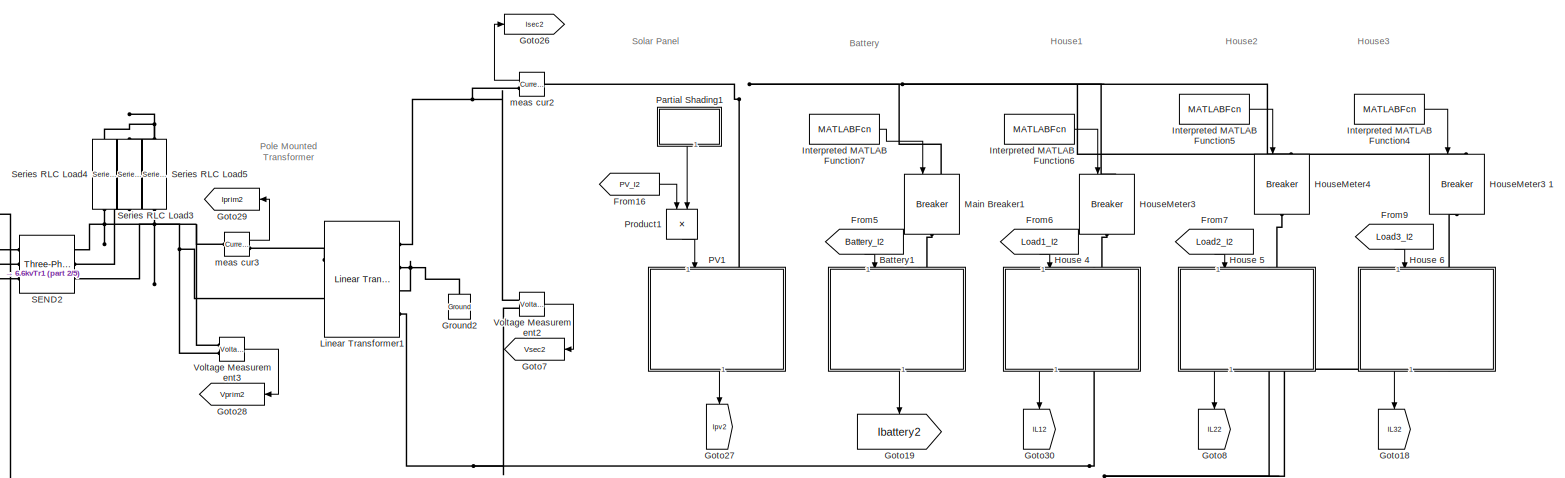
[diagram: root canvas - part 1/5, full width, top band]
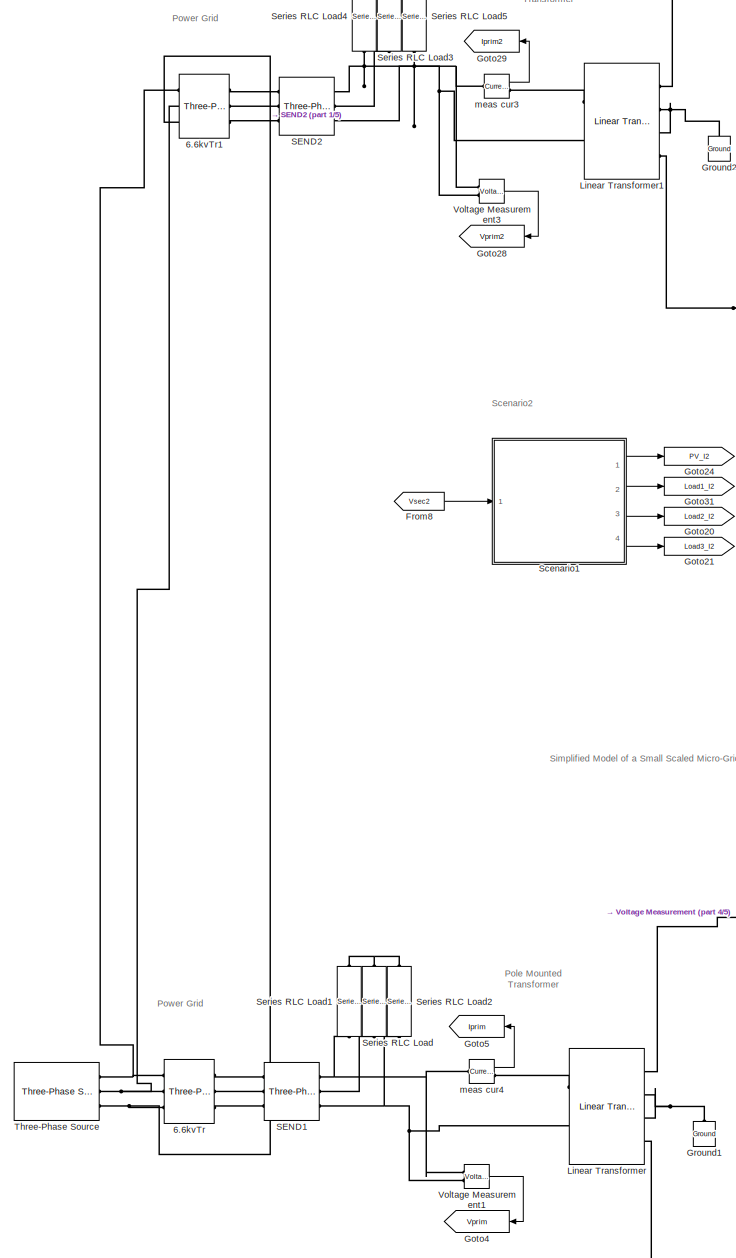
[diagram: root canvas - part 2/5, middle left region]
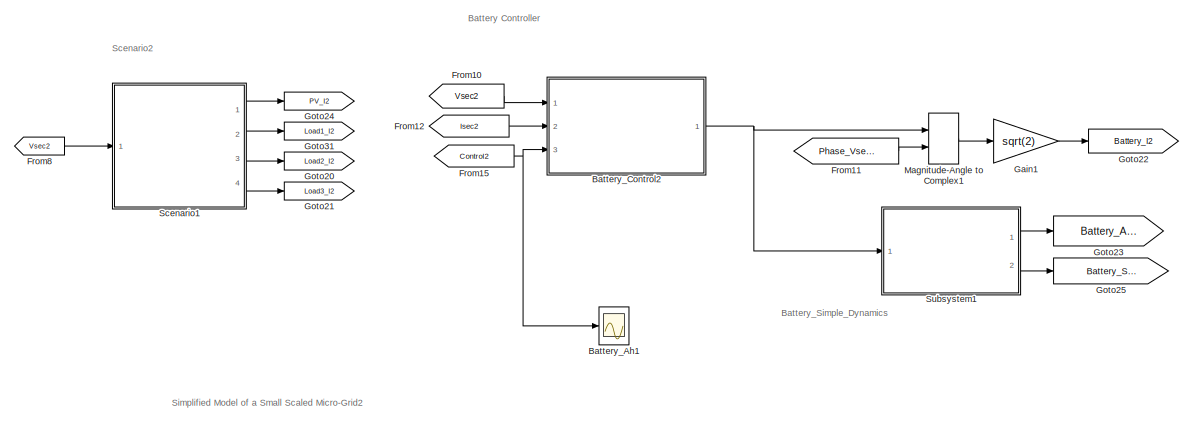
[diagram: root canvas - part 3/5, central region]
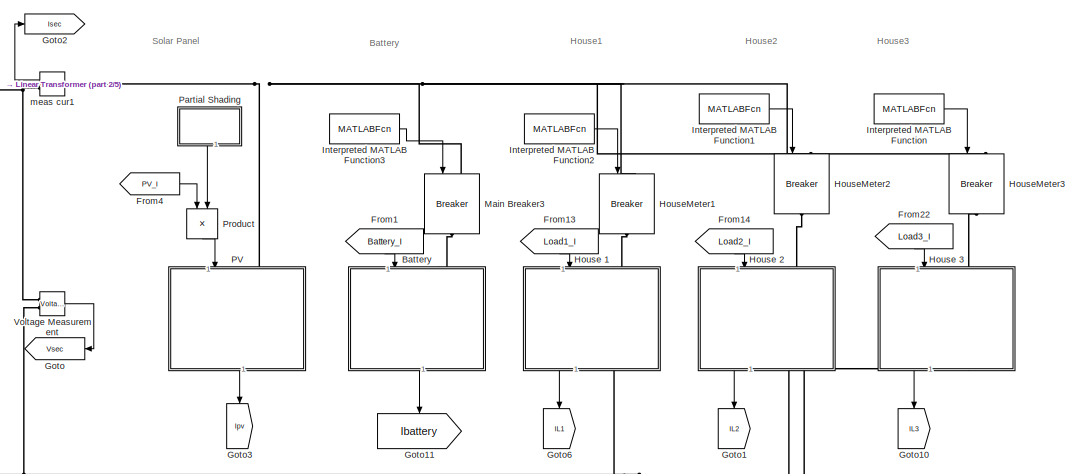
[diagram: root canvas - part 4/5, middle right region]
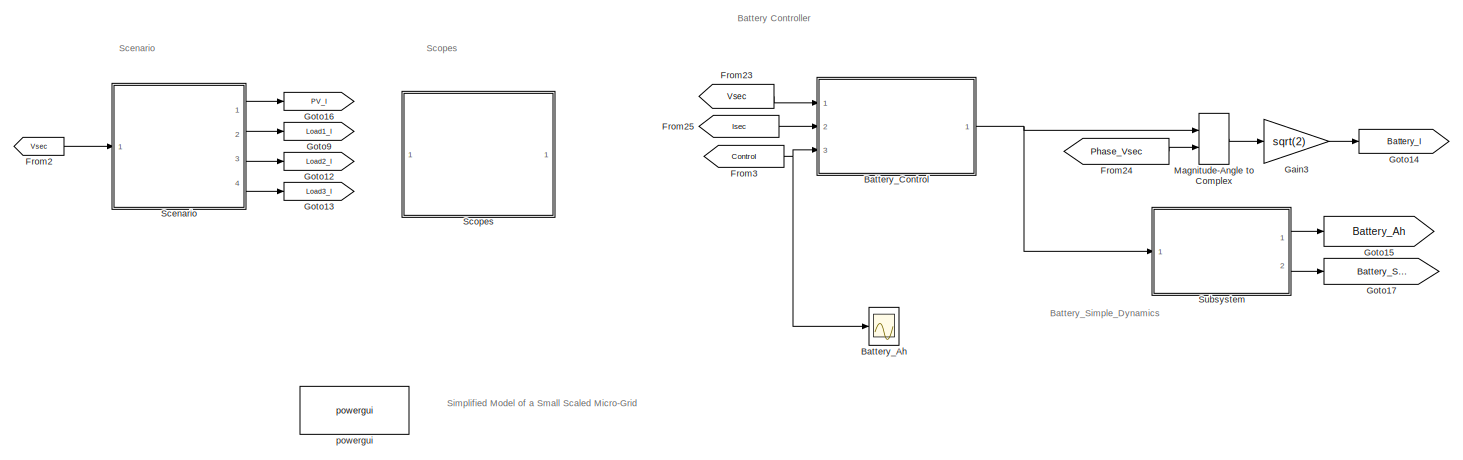
[diagram: root canvas - part 5/5, full width, bottom band]
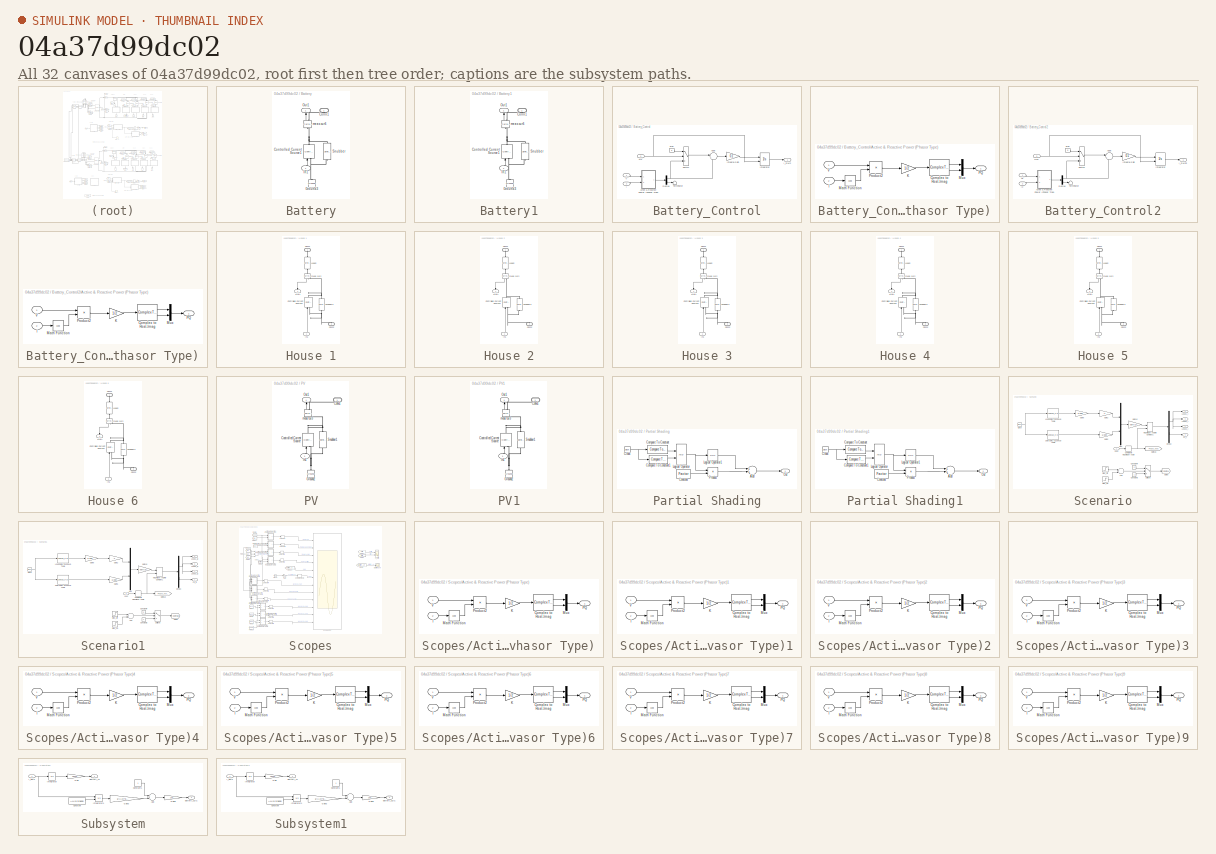
[diagram: thumbnail index - all 32 canvases of the model, root first then tree order]
MODEL slx_04a37d99dc02
KIND model
CONFIG AbsTol = auto
CONFIG EnableMultiTasking = off
CONFIG FixedStep = 1/(1000)
CONFIG MaxStep = 60
CONFIG MinStep = auto
CONFIG PreLoadFcn = load('solar_load_data_24h.mat')\n
CONFIG RelTol = 1e-4
CONFIG SampleTimeConstraint = Unconstrained
CONFIG Solver = ode23tb
CONFIG SolverName = ode23tb
CONFIG StartTime = 0.0
CONFIG StopTime = 24*60*60
BLOCK [Reference] 6.6kvTr  REF=powerlib/Elements/Three-Phase
Transformer
(Two Windings)
  Ports = [0, 0, 0, 0, 0, 3, 3]
  SourceBlock = powerlib/Elements/Three-Phase\nTransformer\n(Two Windings)
  SourceType = Three-Phase Transformer (Two Windings)
BLOCK [Reference] 6.6kvTr1  REF=powerlib/Elements/Three-Phase
Transformer
(Two Windings)
  Ports = [0, 0, 0, 0, 0, 3, 3]
  SourceBlock = powerlib/Elements/Three-Phase\nTransformer\n(Two Windings)
  SourceType = Three-Phase Transformer (Two Windings)
BLOCK [SubSystem] Battery
  Ports = [1, 1, 0, 0, 0, 1]
  RequestExecContextInheritance = off
  Variant = off
BLOCK [PMIOPort] Battery/Conn1
  Port = 1
  Side = Left
BLOCK [Reference] Battery/Controlled Current Source1  REF=powerlib/Electrical
Sources/Controlled Current Source
  Ports = [1, 0, 0, 0, 0, 1, 1]
  SourceBlock = powerlib/Electrical\nSources/Controlled Current Source
  SourceType = Controlled Current Source
BLOCK [Reference] Battery/Ground3  REF=powerlib/Elements/Ground
  Ports = [0, 0, 0, 0, 0, 1]
  SourceBlock = powerlib/Elements/Ground
  SourceType = Ground
BLOCK [Inport] Battery/In1
  IconDisplay = Port number
BLOCK [Outport] Battery/Out1
  IconDisplay = Port number
BLOCK [Reference] Battery/Snubber  REF=powerlib/Elements/Series RLC Branch
  Ports = [0, 0, 0, 0, 0, 1, 1]
  SourceBlock = powerlib/Elements/Series RLC Branch
  SourceType = Series RLC Branch
BLOCK [Reference] Battery/meas cur6  REF=powerlib/Measurements/Current Measurement
  Ports = [0, 1, 0, 0, 0, 1, 1]
  SourceBlock = powerlib/Measurements/Current Measurement
  SourceType = Current Measurement
BLOCK [SubSystem] Battery1
  Ports = [1, 1, 0, 0, 0, 1]
  RequestExecContextInheritance = off
  Variant = off
BLOCK [PMIOPort] Battery1/Conn1
  Port = 1
  Side = Left
BLOCK [Reference] Battery1/Controlled Current Source1  REF=powerlib/Electrical
Sources/Controlled Current Source
  Ports = [1, 0, 0, 0, 0, 1, 1]
  SourceBlock = powerlib/Electrical\nSources/Controlled Current Source
  SourceType = Controlled Current Source
BLOCK [Reference] Battery1/Ground3  REF=powerlib/Elements/Ground
  Ports = [0, 0, 0, 0, 0, 1]
  SourceBlock = powerlib/Elements/Ground
  SourceType = Ground
BLOCK [Inport] Battery1/In1
  IconDisplay = Port number
BLOCK [Outport] Battery1/Out1
  IconDisplay = Port number
BLOCK [Reference] Battery1/Snubber  REF=powerlib/Elements/Series RLC Branch
  Ports = [0, 0, 0, 0, 0, 1, 1]
  SourceBlock = powerlib/Elements/Series RLC Branch
  SourceType = Series RLC Branch
BLOCK [Reference] Battery1/meas cur6  REF=powerlib/Measurements/Current Measurement
  Ports = [0, 1, 0, 0, 0, 1, 1]
  SourceBlock = powerlib/Measurements/Current Measurement
  SourceType = Current Measurement
BLOCK [Scope] Battery_Ah
  NumInputPorts = 1
  Ports = [1]
  ScopeSpecificationString = C++SS(StrPVP('Location','[1549, 770, 2269, 1071]'),StrPVP('Open','off'),StrPVP('ZoomMode','yonly'),MxPVP('AxesTitles',24,'struct(''axes1'',''%<SignalLabel>'')'),MxPVP('ScopeGraphics',28,'struct(''FigureColor'',''[0.5 0.5 0.5]'',''AxesColor'',''[0 0 0]'',''AxesTickColor'',''[1 1 1]'',''LineColors'',''[1 1 0;1 0 1;0 1 1;1 0 0;0 1 0;0 0 1]'',''LineStyles'',''-|-|-|-|-|-'',''LineWidths'',''[0.5 0.5 0....<+340ch>
BLOCK [Scope] Battery_Ah1
  NumInputPorts = 1
  Ports = [1]
  ScopeSpecificationString = C++SS(StrPVP('Location','[1549, 770, 2269, 1071]'),StrPVP('Open','off'),StrPVP('ZoomMode','yonly'),MxPVP('AxesTitles',24,'struct(''axes1'',''%<SignalLabel>'')'),MxPVP('ScopeGraphics',28,'struct(''FigureColor'',''[0.5 0.5 0.5]'',''AxesColor'',''[0 0 0]'',''AxesTickColor'',''[1 1 1]'',''LineColors'',''[1 1 0;1 0 1;0 1 1;1 0 0;0 1 0;0 0 1]'',''LineStyles'',''-|-|-|-|-|-'',''LineWidths'',''[0.5 0.5 0....<+372ch>
BLOCK [SubSystem] Battery_Control
  Ports = [3, 1]
  RequestExecContextInheritance = off
  Variant = off
BLOCK [SubSystem] Battery_Control/Active & Reactive Power (Phasor Type)
  DialogController = POWERSYS.PowerSysDialog
  Ports = [2, 1]
  RequestExecContextInheritance = off
  Variant = off
BLOCK [ComplexToRealImag] Battery_Control/Active & Reactive Power (Phasor Type)/Complex to Real-Imag
  Ports = [1, 2]
BLOCK [Inport] Battery_Control/Active & Reactive Power (Phasor Type)/I
  IconDisplay = Port number
  Port = 2
BLOCK [Gain] Battery_Control/Active & Reactive Power (Phasor Type)/K
  Gain = 1/2
BLOCK [Math] Battery_Control/Active & Reactive Power (Phasor Type)/Math Function
  Operator = conj
  Ports = [1, 1]
BLOCK [Mux] Battery_Control/Active & Reactive Power (Phasor Type)/Mux
  DisplayOption = bar
  Inputs = 2
  Ports = [2, 1]
BLOCK [Outport] Battery_Control/Active & Reactive Power (Phasor Type)/PQ
  IconDisplay = Port number
BLOCK [Product] Battery_Control/Active & Reactive Power (Phasor Type)/Product2
  Ports = [2, 1]
  RndMeth = Floor
BLOCK [Inport] Battery_Control/Active & Reactive Power (Phasor Type)/V
  IconDisplay = Port number
BLOCK [Sum] Battery_Control/Add6
  IconShape = round
  InputSameDT = off
  Inputs = |+-
  OutDataTypeStr = Inherit: Inherit via internal rule
  Ports = [2, 1]
  SaturateOnIntegerOverflow = off
BLOCK [Demux] Battery_Control/Demux
  DisplayOption = bar
  Outputs = 2
  Ports = [1, 2]
BLOCK [Inport] Battery_Control/I
  IconDisplay = Port number
  Port = 2
BLOCK [Outport] Battery_Control/I_RMS
  IconDisplay = Port number
  InitialOutput = 0
  OutputWhenDisabled = reset
BLOCK [Gain] Battery_Control/Integral Gain
  Gain = 0.1
  OutDataTypeStr = Inherit: Inherit via internal rule
  ParamDataTypeStr = Inherit: Inherit via internal rule
  SaturateOnIntegerOverflow = off
BLOCK [Integrator] Battery_Control/Integrator
  ExternalReset = falling
  LimitOutput = on
  LowerSaturationLimit = -50
  Ports = [2, 1]
  UpperSaturationLimit = 50
BLOCK [Inport] Battery_Control/On
  IconDisplay = Port number
  Port = 3
BLOCK [Constant] Battery_Control/Pref
  Value = 0
BLOCK [Switch] Battery_Control/Switch
  InputSameDT = off
  SaturateOnIntegerOverflow = off
  Threshold = 0.5
BLOCK [Terminator] Battery_Control/Terminator
BLOCK [Inport] Battery_Control/V
  IconDisplay = Port number
BLOCK [SubSystem] Battery_Control2
  Ports = [3, 1]
  RequestExecContextInheritance = off
  Variant = off
BLOCK [SubSystem] Battery_Control2/Active & Reactive Power (Phasor Type)
  DialogController = POWERSYS.PowerSysDialog
  Ports = [2, 1]
  RequestExecContextInheritance = off
  Variant = off
BLOCK [ComplexToRealImag] Battery_Control2/Active & Reactive Power (Phasor Type)/Complex to Real-Imag
  Ports = [1, 2]
BLOCK [Inport] Battery_Control2/Active & Reactive Power (Phasor Type)/I
  IconDisplay = Port number
  Port = 2
BLOCK [Gain] Battery_Control2/Active & Reactive Power (Phasor Type)/K
  Gain = 1/2
BLOCK [Math] Battery_Control2/Active & Reactive Power (Phasor Type)/Math Function
  Operator = conj
  Ports = [1, 1]
BLOCK [Mux] Battery_Control2/Active & Reactive Power (Phasor Type)/Mux
  DisplayOption = bar
  Inputs = 2
  Ports = [2, 1]
BLOCK [Outport] Battery_Control2/Active & Reactive Power (Phasor Type)/PQ
  IconDisplay = Port number
BLOCK [Product] Battery_Control2/Active & Reactive Power (Phasor Type)/Product2
  Ports = [2, 1]
  RndMeth = Floor
BLOCK [Inport] Battery_Control2/Active & Reactive Power (Phasor Type)/V
  IconDisplay = Port number
BLOCK [Sum] Battery_Control2/Add6
  IconShape = round
  InputSameDT = off
  Inputs = |+-
  OutDataTypeStr = Inherit: Inherit via internal rule
  Ports = [2, 1]
  SaturateOnIntegerOverflow = off
BLOCK [Demux] Battery_Control2/Demux
  DisplayOption = bar
  Outputs = 2
  Ports = [1, 2]
BLOCK [Inport] Battery_Control2/I2
  IconDisplay = Port number
  Port = 2
BLOCK [Outport] Battery_Control2/I_RMS2
  IconDisplay = Port number
  InitialOutput = 0
  OutputWhenDisabled = reset
BLOCK [Gain] Battery_Control2/Integral Gain
  Gain = 0.1
  OutDataTypeStr = Inherit: Inherit via internal rule
  ParamDataTypeStr = Inherit: Inherit via internal rule
  SaturateOnIntegerOverflow = off
BLOCK [Integrator] Battery_Control2/Integrator
  ExternalReset = falling
  LimitOutput = on
  LowerSaturationLimit = -50
  Ports = [2, 1]
  UpperSaturationLimit = 50
BLOCK [Inport] Battery_Control2/On2
  IconDisplay = Port number
  Port = 3
BLOCK [Constant] Battery_Control2/Pref
  Value = 0
BLOCK [Switch] Battery_Control2/Switch
  InputSameDT = off
  SaturateOnIntegerOverflow = off
  Threshold = 0.5
BLOCK [Terminator] Battery_Control2/Terminator
BLOCK [Inport] Battery_Control2/V2
  IconDisplay = Port number
BLOCK [From] From1
  GotoTag = Battery_I
  TagVisibility = global
BLOCK [From] From10
  GotoTag = Vsec2
  TagVisibility = global
BLOCK [From] From11
  GotoTag = Phase_Vsec2
  TagVisibility = global
BLOCK [From] From12
  GotoTag = Isec2
  TagVisibility = global
BLOCK [From] From13
  GotoTag = Load1_I
  TagVisibility = global
BLOCK [From] From14
  GotoTag = Load2_I
  TagVisibility = global
BLOCK [From] From15
  GotoTag = Control2
  TagVisibility = global
BLOCK [From] From16
  GotoTag = PV_I2
  TagVisibility = global
BLOCK [From] From2
  GotoTag = Vsec
  TagVisibility = global
BLOCK [From] From22
  GotoTag = Load3_I
  TagVisibility = global
BLOCK [From] From23
  GotoTag = Vsec
  TagVisibility = global
BLOCK [From] From24
  GotoTag = Phase_Vsec
  TagVisibility = global
BLOCK [From] From25
  GotoTag = Isec
  TagVisibility = global
BLOCK [From] From3
  GotoTag = Control
  TagVisibility = global
BLOCK [From] From4
  GotoTag = PV_I
  TagVisibility = global
BLOCK [From] From5
  GotoTag = Battery_I2
  TagVisibility = global
BLOCK [From] From6
  GotoTag = Load1_I2
  TagVisibility = global
BLOCK [From] From7
  GotoTag = Load2_I2
  TagVisibility = global
BLOCK [From] From8
  GotoTag = Vsec2
  TagVisibility = global
BLOCK [From] From9
  GotoTag = Load3_I2
  TagVisibility = global
BLOCK [Gain] Gain1
  Gain = sqrt(2)
  OutDataTypeStr = Inherit: Inherit via internal rule
  ParamDataTypeStr = Inherit: Inherit via internal rule
  SaturateOnIntegerOverflow = off
BLOCK [Gain] Gain3
  Gain = sqrt(2)
  OutDataTypeStr = Inherit: Inherit via internal rule
  ParamDataTypeStr = Inherit: Inherit via internal rule
  SaturateOnIntegerOverflow = off
BLOCK [Goto] Goto
  GotoTag = Vsec
  TagVisibility = global
BLOCK [Goto] Goto1
  GotoTag = IL2
  TagVisibility = global
BLOCK [Goto] Goto10
  GotoTag = IL3
  TagVisibility = global
BLOCK [Goto] Goto11
  GotoTag = Ibattery
  TagVisibility = global
BLOCK [Goto] Goto12
  GotoTag = Load2_I
  TagVisibility = global
BLOCK [Goto] Goto13
  GotoTag = Load3_I
  TagVisibility = global
BLOCK [Goto] Goto14
  GotoTag = Battery_I
  TagVisibility = global
BLOCK [Goto] Goto15
  GotoTag = Battery_Ah
  TagVisibility = global
BLOCK [Goto] Goto16
  GotoTag = PV_I
  TagVisibility = global
BLOCK [Goto] Goto17
  GotoTag = Battery_SOC
  TagVisibility = global
BLOCK [Goto] Goto18
  GotoTag = IL32
  TagVisibility = global
BLOCK [Goto] Goto19
  GotoTag = Ibattery2
  TagVisibility = global
BLOCK [Goto] Goto2
  GotoTag = Isec
  TagVisibility = global
BLOCK [Goto] Goto20
  GotoTag = Load2_I2
  TagVisibility = global
BLOCK [Goto] Goto21
  GotoTag = Load3_I2
  TagVisibility = global
BLOCK [Goto] Goto22
  GotoTag = Battery_I2
  TagVisibility = global
BLOCK [Goto] Goto23
  GotoTag = Battery_Ah2
  TagVisibility = global
BLOCK [Goto] Goto24
  GotoTag = PV_I2
  TagVisibility = global
BLOCK [Goto] Goto25
  GotoTag = Battery_SOC2
  TagVisibility = global
BLOCK [Goto] Goto26
  GotoTag = Isec2
  TagVisibility = global
BLOCK [Goto] Goto27
  GotoTag = Ipv2
  TagVisibility = global
BLOCK [Goto] Goto28
  GotoTag = Vprim2
  TagVisibility = global
BLOCK [Goto] Goto29
  Commented = on
  GotoTag = Iprim2
  TagVisibility = global
BLOCK [Goto] Goto3
  GotoTag = Ipv
  TagVisibility = global
BLOCK [Goto] Goto30
  GotoTag = IL12
  TagVisibility = global
BLOCK [Goto] Goto31
  GotoTag = Load1_I2
  TagVisibility = global
BLOCK [Goto] Goto4
  GotoTag = Vprim
  TagVisibility = global
BLOCK [Goto] Goto5
  GotoTag = Iprim
  TagVisibility = global
BLOCK [Goto] Goto6
  GotoTag = IL1
  TagVisibility = global
BLOCK [Goto] Goto7
  GotoTag = Vsec2
  TagVisibility = global
BLOCK [Goto] Goto8
  GotoTag = IL22
  TagVisibility = global
BLOCK [Goto] Goto9
  GotoTag = Load1_I
  TagVisibility = global
BLOCK [Reference] Ground1  REF=powerlib/Elements/Ground
  Ports = [0, 0, 0, 0, 0, 1]
  SourceBlock = powerlib/Elements/Ground
  SourceType = Ground
BLOCK [Reference] Ground2  REF=powerlib/Elements/Ground
  Ports = [0, 0, 0, 0, 0, 1]
  SourceBlock = powerlib/Elements/Ground
  SourceType = Ground
BLOCK [SubSystem] House 1
  Ports = [1, 1, 0, 0, 0, 1, 1]
  RequestExecContextInheritance = off
  Variant = off
BLOCK [PMIOPort] House 1/Conn1
  Port = 1
  Side = Left
BLOCK [PMIOPort] House 1/Conn2
  Port = 2
  Side = Right
BLOCK [Reference] House 1/Controlled Current Source4  REF=powerlib/Electrical
Sources/Controlled Current Source
  Ports = [1, 0, 0, 0, 0, 1, 1]
  SourceBlock = powerlib/Electrical\nSources/Controlled Current Source
  SourceType = Controlled Current Source
BLOCK [Inport] House 1/In1
  IconDisplay = Port number
BLOCK [Reference] House 1/Load2  REF=powerlib/Elements/Series RLC Branch
  Ports = [0, 0, 0, 0, 0, 1, 1]
  SourceBlock = powerlib/Elements/Series RLC Branch
  SourceType = Series RLC Branch
BLOCK [Outport] House 1/Out1
  IconDisplay = Port number
BLOCK [Reference] House 1/Snubber3  REF=powerlib/Elements/Series RLC Branch
  Ports = [0, 0, 0, 0, 0, 1, 1]
  SourceBlock = powerlib/Elements/Series RLC Branch
  SourceType = Series RLC Branch
BLOCK [Reference] House 1/meas cur2  REF=powerlib/Measurements/Current Measurement
  Ports = [0, 1, 0, 0, 0, 1, 1]
  SourceBlock = powerlib/Measurements/Current Measurement
  SourceType = Current Measurement
BLOCK [SubSystem] House 2
  Ports = [1, 1, 0, 0, 0, 1, 1]
  RequestExecContextInheritance = off
  Variant = off
BLOCK [PMIOPort] House 2/Conn1
  Port = 1
  Side = Left
BLOCK [PMIOPort] House 2/Conn2
  Port = 2
  Side = Right
BLOCK [Reference] House 2/Controlled Current Source4  REF=powerlib/Electrical
Sources/Controlled Current Source
  Ports = [1, 0, 0, 0, 0, 1, 1]
  SourceBlock = powerlib/Electrical\nSources/Controlled Current Source
  SourceType = Controlled Current Source
BLOCK [Inport] House 2/In1
  IconDisplay = Port number
BLOCK [Reference] House 2/Load2  REF=powerlib/Elements/Series RLC Branch
  Ports = [0, 0, 0, 0, 0, 1, 1]
  SourceBlock = powerlib/Elements/Series RLC Branch
  SourceType = Series RLC Branch
BLOCK [Outport] House 2/Out1
  IconDisplay = Port number
BLOCK [Reference] House 2/Snubber3  REF=powerlib/Elements/Series RLC Branch
  Ports = [0, 0, 0, 0, 0, 1, 1]
  SourceBlock = powerlib/Elements/Series RLC Branch
  SourceType = Series RLC Branch
BLOCK [Reference] House 2/meas cur2  REF=powerlib/Measurements/Current Measurement
  Ports = [0, 1, 0, 0, 0, 1, 1]
  SourceBlock = powerlib/Measurements/Current Measurement
  SourceType = Current Measurement
BLOCK [SubSystem] House 3
  Ports = [1, 1, 0, 0, 0, 1, 1]
  RequestExecContextInheritance = off
  Variant = off
BLOCK [PMIOPort] House 3/Conn1
  Port = 1
  Side = Left
BLOCK [PMIOPort] House 3/Conn2
  Port = 2
  Side = Right
BLOCK [Reference] House 3/Controlled Current Source4  REF=powerlib/Electrical
Sources/Controlled Current Source
  Ports = [1, 0, 0, 0, 0, 1, 1]
  SourceBlock = powerlib/Electrical\nSources/Controlled Current Source
  SourceType = Controlled Current Source
BLOCK [Inport] House 3/In1
  IconDisplay = Port number
BLOCK [Reference] House 3/Load2  REF=powerlib/Elements/Series RLC Branch
  Ports = [0, 0, 0, 0, 0, 1, 1]
  SourceBlock = powerlib/Elements/Series RLC Branch
  SourceType = Series RLC Branch
BLOCK [Outport] House 3/Out1
  IconDisplay = Port number
BLOCK [Reference] House 3/Snubber3  REF=powerlib/Elements/Series RLC Branch
  Ports = [0, 0, 0, 0, 0, 1, 1]
  SourceBlock = powerlib/Elements/Series RLC Branch
  SourceType = Series RLC Branch
BLOCK [Reference] House 3/meas cur2  REF=powerlib/Measurements/Current Measurement
  Ports = [0, 1, 0, 0, 0, 1, 1]
  SourceBlock = powerlib/Measurements/Current Measurement
  SourceType = Current Measurement
BLOCK [SubSystem] House 4
  Ports = [1, 1, 0, 0, 0, 1, 1]
  RequestExecContextInheritance = off
  Variant = off
BLOCK [PMIOPort] House 4/Conn1
  Port = 1
  Side = Left
BLOCK [PMIOPort] House 4/Conn2
  Port = 2
  Side = Right
BLOCK [Reference] House 4/Controlled Current Source4  REF=powerlib/Electrical
Sources/Controlled Current Source
  Ports = [1, 0, 0, 0, 0, 1, 1]
  SourceBlock = powerlib/Electrical\nSources/Controlled Current Source
  SourceType = Controlled Current Source
BLOCK [Inport] House 4/In1
  IconDisplay = Port number
BLOCK [Reference] House 4/Load2  REF=powerlib/Elements/Series RLC Branch
  Ports = [0, 0, 0, 0, 0, 1, 1]
  SourceBlock = powerlib/Elements/Series RLC Branch
  SourceType = Series RLC Branch
BLOCK [Outport] House 4/Out1
  IconDisplay = Port number
BLOCK [Reference] House 4/Snubber3  REF=powerlib/Elements/Series RLC Branch
  Ports = [0, 0, 0, 0, 0, 1, 1]
  SourceBlock = powerlib/Elements/Series RLC Branch
  SourceType = Series RLC Branch
BLOCK [Reference] House 4/meas cur2  REF=powerlib/Measurements/Current Measurement
  Ports = [0, 1, 0, 0, 0, 1, 1]
  SourceBlock = powerlib/Measurements/Current Measurement
  SourceType = Current Measurement
BLOCK [SubSystem] House 5
  Ports = [1, 1, 0, 0, 0, 1, 1]
  RequestExecContextInheritance = off
  Variant = off
BLOCK [PMIOPort] House 5/Conn1
  Port = 1
  Side = Left
BLOCK [PMIOPort] House 5/Conn2
  Port = 2
  Side = Right
BLOCK [Reference] House 5/Controlled Current Source4  REF=powerlib/Electrical
Sources/Controlled Current Source
  Ports = [1, 0, 0, 0, 0, 1, 1]
  SourceBlock = powerlib/Electrical\nSources/Controlled Current Source
  SourceType = Controlled Current Source
BLOCK [Inport] House 5/In1
  IconDisplay = Port number
BLOCK [Reference] House 5/Load2  REF=powerlib/Elements/Series RLC Branch
  Ports = [0, 0, 0, 0, 0, 1, 1]
  SourceBlock = powerlib/Elements/Series RLC Branch
  SourceType = Series RLC Branch
BLOCK [Outport] House 5/Out1
  IconDisplay = Port number
BLOCK [Reference] House 5/Snubber3  REF=powerlib/Elements/Series RLC Branch
  Ports = [0, 0, 0, 0, 0, 1, 1]
  SourceBlock = powerlib/Elements/Series RLC Branch
  SourceType = Series RLC Branch
BLOCK [Reference] House 5/meas cur2  REF=powerlib/Measurements/Current Measurement
  Ports = [0, 1, 0, 0, 0, 1, 1]
  SourceBlock = powerlib/Measurements/Current Measurement
  SourceType = Current Measurement
BLOCK [SubSystem] House 6
  Ports = [1, 1, 0, 0, 0, 1, 1]
  RequestExecContextInheritance = off
  Variant = off
BLOCK [PMIOPort] House 6/Conn1
  Port = 1
  Side = Left
BLOCK [PMIOPort] House 6/Conn2
  Port = 2
  Side = Right
BLOCK [Reference] House 6/Controlled Current Source4  REF=powerlib/Electrical
Sources/Controlled Current Source
  Ports = [1, 0, 0, 0, 0, 1, 1]
  SourceBlock = powerlib/Electrical\nSources/Controlled Current Source
  SourceType = Controlled Current Source
BLOCK [Inport] House 6/In1
  IconDisplay = Port number
BLOCK [Reference] House 6/Load2  REF=powerlib/Elements/Series RLC Branch
  Ports = [0, 0, 0, 0, 0, 1, 1]
  SourceBlock = powerlib/Elements/Series RLC Branch
  SourceType = Series RLC Branch
BLOCK [Outport] House 6/Out1
  IconDisplay = Port number
BLOCK [Reference] House 6/Snubber3  REF=powerlib/Elements/Series RLC Branch
  Ports = [0, 0, 0, 0, 0, 1, 1]
  SourceBlock = powerlib/Elements/Series RLC Branch
  SourceType = Series RLC Branch
BLOCK [Reference] House 6/meas cur2  REF=powerlib/Measurements/Current Measurement
  Ports = [0, 1, 0, 0, 0, 1, 1]
  SourceBlock = powerlib/Measurements/Current Measurement
  SourceType = Current Measurement
BLOCK [Reference] HouseMeter1  REF=powerlib/Elements/Breaker
  Ports = [1, 0, 0, 0, 0, 1, 1]
  SourceBlock = powerlib/Elements/Breaker
  SourceType = Breaker
BLOCK [Reference] HouseMeter2  REF=powerlib/Elements/Breaker
  Ports = [1, 0, 0, 0, 0, 1, 1]
  SourceBlock = powerlib/Elements/Breaker
  SourceType = Breaker
BLOCK [Reference] HouseMeter3  REF=powerlib/Elements/Breaker
  Ports = [1, 0, 0, 0, 0, 1, 1]
  SourceBlock = powerlib/Elements/Breaker
  SourceType = Breaker
BLOCK [Reference] HouseMeter3   REF=powerlib/Elements/Breaker
  Ports = [1, 0, 0, 0, 0, 1, 1]
  SourceBlock = powerlib/Elements/Breaker
  SourceType = Breaker
BLOCK [Reference] HouseMeter3 1  REF=powerlib/Elements/Breaker
  Ports = [1, 0, 0, 0, 0, 1, 1]
  SourceBlock = powerlib/Elements/Breaker
  SourceType = Breaker
BLOCK [Reference] HouseMeter4  REF=powerlib/Elements/Breaker
  Ports = [1, 0, 0, 0, 0, 1, 1]
  SourceBlock = powerlib/Elements/Breaker
  SourceType = Breaker
BLOCK [MATLABFcn] Interpreted MATLAB Function
  MATLABFcn = h3ControllerFunc
  OutputSignalType = real
  Ports = [1, 1]
BLOCK [MATLABFcn] Interpreted MATLAB Function1
  MATLABFcn = h2ControllerFunc
  OutputSignalType = real
  Ports = [1, 1]
BLOCK [MATLABFcn] Interpreted MATLAB Function2
  MATLABFcn = h1ControllerFunc
  OutputSignalType = real
  Ports = [1, 1]
BLOCK [MATLABFcn] Interpreted MATLAB Function3
  MATLABFcn = BatteryControllerFunc
  OutputSignalType = real
  Ports = [1, 1]
BLOCK [MATLABFcn] Interpreted MATLAB Function4
  MATLABFcn = h3ControllerFunc
  OutputSignalType = real
  Ports = [1, 1]
BLOCK [MATLABFcn] Interpreted MATLAB Function5
  MATLABFcn = h2ControllerFunc
  OutputSignalType = real
  Ports = [1, 1]
BLOCK [MATLABFcn] Interpreted MATLAB Function6
  MATLABFcn = h1ControllerFunc
  OutputSignalType = real
  Ports = [1, 1]
BLOCK [MATLABFcn] Interpreted MATLAB Function7
  MATLABFcn = BatteryControllerFunc
  OutputSignalType = real
  Ports = [1, 1]
BLOCK [Reference] Linear Transformer  REF=powerlib/Elements/Linear Transformer
  Ports = [0, 0, 0, 0, 0, 2, 4]
  SourceBlock = powerlib/Elements/Linear Transformer
  SourceType = Linear Transformer
BLOCK [Reference] Linear Transformer1  REF=powerlib/Elements/Linear Transformer
  Ports = [0, 0, 0, 0, 0, 2, 4]
  SourceBlock = powerlib/Elements/Linear Transformer
  SourceType = Linear Transformer
BLOCK [MagnitudeAngleToComplex] Magnitude-Angle to Complex
  Ports = [2, 1]
BLOCK [MagnitudeAngleToComplex] Magnitude-Angle to Complex1
  Ports = [2, 1]
BLOCK [Reference] Main Breaker1  REF=powerlib/Elements/Breaker
  Ports = [1, 0, 0, 0, 0, 1, 1]
  SourceBlock = powerlib/Elements/Breaker
  SourceType = Breaker
BLOCK [Reference] Main Breaker3  REF=powerlib/Elements/Breaker
  Ports = [1, 0, 0, 0, 0, 1, 1]
  SourceBlock = powerlib/Elements/Breaker
  SourceType = Breaker
BLOCK [SubSystem] PV
  Ports = [1, 1, 0, 0, 0, 1]
  RequestExecContextInheritance = off
  Variant = off
BLOCK [PMIOPort] PV/Conn1
  Port = 1
  Side = Left
BLOCK [Reference] PV/Controlled Current Source  REF=powerlib/Electrical
Sources/Controlled Current Source
  Ports = [1, 0, 0, 0, 0, 1, 1]
  SourceBlock = powerlib/Electrical\nSources/Controlled Current Source
  SourceType = Controlled Current Source
BLOCK [Reference] PV/Ground2  REF=powerlib/Elements/Ground
  Ports = [0, 0, 0, 0, 0, 1]
  SourceBlock = powerlib/Elements/Ground
  SourceType = Ground
BLOCK [Inport] PV/In1
  IconDisplay = Port number
BLOCK [Outport] PV/Out1
  IconDisplay = Port number
BLOCK [Reference] PV/Snubber1  REF=powerlib/Elements/Series RLC Branch
  Ports = [0, 0, 0, 0, 0, 1, 1]
  SourceBlock = powerlib/Elements/Series RLC Branch
  SourceType = Series RLC Branch
BLOCK [Reference] PV/meas cur3  REF=powerlib/Measurements/Current Measurement
  Ports = [0, 1, 0, 0, 0, 1, 1]
  SourceBlock = powerlib/Measurements/Current Measurement
  SourceType = Current Measurement
BLOCK [SubSystem] PV1
  Ports = [1, 1, 0, 0, 0, 1]
  RequestExecContextInheritance = off
  Variant = off
BLOCK [PMIOPort] PV1/Conn1
  Port = 1
  Side = Left
BLOCK [Reference] PV1/Controlled Current Source  REF=powerlib/Electrical
Sources/Controlled Current Source
  Ports = [1, 0, 0, 0, 0, 1, 1]
  SourceBlock = powerlib/Electrical\nSources/Controlled Current Source
  SourceType = Controlled Current Source
BLOCK [Reference] PV1/Ground2  REF=powerlib/Elements/Ground
  Ports = [0, 0, 0, 0, 0, 1]
  SourceBlock = powerlib/Elements/Ground
  SourceType = Ground
BLOCK [Inport] PV1/In1
  IconDisplay = Port number
BLOCK [Outport] PV1/Out1
  IconDisplay = Port number
BLOCK [Reference] PV1/Snubber1  REF=powerlib/Elements/Series RLC Branch
  Ports = [0, 0, 0, 0, 0, 1, 1]
  SourceBlock = powerlib/Elements/Series RLC Branch
  SourceType = Series RLC Branch
BLOCK [Reference] PV1/meas cur3  REF=powerlib/Measurements/Current Measurement
  Ports = [0, 1, 0, 0, 0, 1, 1]
  SourceBlock = powerlib/Measurements/Current Measurement
  SourceType = Current Measurement
BLOCK [SubSystem] Partial Shading
  Ports = [0, 1]
  RequestExecContextInheritance = off
  Variant = off
BLOCK [Sum] Partial Shading/Add
  InputSameDT = off
  OutDataTypeStr = Inherit: Inherit via internal rule
  Ports = [2, 1]
  SaturateOnIntegerOverflow = off
BLOCK [Clock] Partial Shading/Clock
  Decimation = 1
BLOCK [Reference] Partial Shading/Compare To Constant  REF=simulink/Logic and Bit
Operations/Compare
To Constant
  Ports = [1, 1]
  SourceBlock = simulink/Logic and Bit\nOperations/Compare\nTo Constant
  SourceType = Compare To Constant
BLOCK [Reference] Partial Shading/Compare To Constant1  REF=simulink/Logic and Bit
Operations/Compare
To Constant
  Ports = [1, 1]
  SourceBlock = simulink/Logic and Bit\nOperations/Compare\nTo Constant
  SourceType = Compare To Constant
BLOCK [Constant] Partial Shading/Constant
  Value = Factor
BLOCK [Logic] Partial Shading/Logical Operator
  AllPortsSameDT = off
  OutDataTypeStr = float('double')
  Ports = [2, 1]
BLOCK [Logic] Partial Shading/Logical Operator1
  AllPortsSameDT = off
  Operator = NOT
  OutDataTypeStr = float('double')
  Ports = [1, 1]
BLOCK [Outport] Partial Shading/Out
  IconDisplay = Port number
BLOCK [Product] Partial Shading/Product
  InputSameDT = off
  OutDataTypeStr = Inherit: Inherit via internal rule
  Ports = [2, 1]
  RndMeth = Floor
  SaturateOnIntegerOverflow = off
BLOCK [SubSystem] Partial Shading1
  Ports = [0, 1]
  RequestExecContextInheritance = off
  Variant = off
BLOCK [Sum] Partial Shading1/Add
  InputSameDT = off
  OutDataTypeStr = Inherit: Inherit via internal rule
  Ports = [2, 1]
  SaturateOnIntegerOverflow = off
BLOCK [Clock] Partial Shading1/Clock
  Decimation = 1
BLOCK [Reference] Partial Shading1/Compare To Constant  REF=simulink/Logic and Bit
Operations/Compare
To Constant
  Ports = [1, 1]
  SourceBlock = simulink/Logic and Bit\nOperations/Compare\nTo Constant
  SourceType = Compare To Constant
BLOCK [Reference] Partial Shading1/Compare To Constant1  REF=simulink/Logic and Bit
Operations/Compare
To Constant
  Ports = [1, 1]
  SourceBlock = simulink/Logic and Bit\nOperations/Compare\nTo Constant
  SourceType = Compare To Constant
BLOCK [Constant] Partial Shading1/Constant
  Value = Factor
BLOCK [Logic] Partial Shading1/Logical Operator
  AllPortsSameDT = off
  OutDataTypeStr = float('double')
  Ports = [2, 1]
BLOCK [Logic] Partial Shading1/Logical Operator1
  AllPortsSameDT = off
  Operator = NOT
  OutDataTypeStr = float('double')
  Ports = [1, 1]
BLOCK [Outport] Partial Shading1/Out
  IconDisplay = Port number
BLOCK [Product] Partial Shading1/Product
  InputSameDT = off
  OutDataTypeStr = Inherit: Inherit via internal rule
  Ports = [2, 1]
  RndMeth = Floor
  SaturateOnIntegerOverflow = off
BLOCK [Product] Product
  InputSameDT = off
  OutDataTypeStr = Inherit: Inherit via internal rule
  Ports = [2, 1]
  RndMeth = Floor
  SaturateOnIntegerOverflow = off
BLOCK [Product] Product1
  InputSameDT = off
  OutDataTypeStr = Inherit: Inherit via internal rule
  Ports = [2, 1]
  RndMeth = Floor
  SaturateOnIntegerOverflow = off
BLOCK [Reference] SEND1  REF=powerlib/Elements/Three-Phase
PI Section Line
  AttributesFormatString = \n
  Ports = [0, 0, 0, 0, 0, 3, 3]
  SourceBlock = powerlib/Elements/Three-Phase\nPI Section Line
  SourceType = Three-Phase PI Section Line
BLOCK [Reference] SEND2  REF=powerlib/Elements/Three-Phase
PI Section Line
  AttributesFormatString = \n
  Ports = [0, 0, 0, 0, 0, 3, 3]
  SourceBlock = powerlib/Elements/Three-Phase\nPI Section Line
  SourceType = Three-Phase PI Section Line
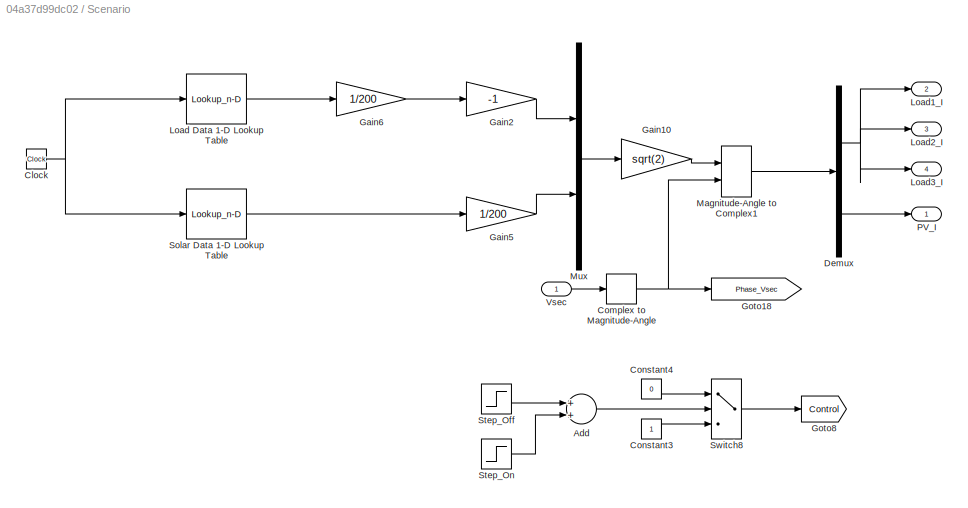
BLOCK [SubSystem] Scenario
  Ports = [1, 4]
  RequestExecContextInheritance = off
  Variant = off
BLOCK [Sum] Scenario/Add
  InputSameDT = off
  OutDataTypeStr = Inherit: Inherit via internal rule
  Ports = [2, 1]
  SaturateOnIntegerOverflow = off
BLOCK [Clock] Scenario/Clock
  Decimation = 1
BLOCK [ComplexToMagnitudeAngle] Scenario/Complex to Magnitude-Angle
  Output = Angle
  Ports = [1, 1]
BLOCK [Constant] Scenario/Constant3
BLOCK [Constant] Scenario/Constant4
  Value = 0
BLOCK [Demux] Scenario/Demux
  DisplayOption = bar
  Outputs = 2
  Ports = [1, 2]
BLOCK [Gain] Scenario/Gain10
  Gain = sqrt(2)
  OutDataTypeStr = Inherit: Inherit via internal rule
  ParamDataTypeStr = Inherit: Inherit via internal rule
  SaturateOnIntegerOverflow = off
BLOCK [Gain] Scenario/Gain2
  Gain = -1
  OutDataTypeStr = Inherit: Inherit via internal rule
  ParamDataTypeStr = Inherit: Inherit via internal rule
  SaturateOnIntegerOverflow = off
BLOCK [Gain] Scenario/Gain5
  Gain = 1/200
  OutDataTypeStr = Inherit: Inherit via internal rule
  ParamDataTypeStr = Inherit: Inherit via internal rule
  SaturateOnIntegerOverflow = off
BLOCK [Gain] Scenario/Gain6
  Gain = 1/200
  OutDataTypeStr = Inherit: Inherit via internal rule
  ParamDataTypeStr = Inherit: Inherit via internal rule
  SaturateOnIntegerOverflow = off
BLOCK [Goto] Scenario/Goto18
  GotoTag = Phase_Vsec
  TagVisibility = global
BLOCK [Goto] Scenario/Goto8
  GotoTag = Control
  TagVisibility = global
BLOCK [Lookup_n-D] Scenario/Load Data 1-D Lookup Table
  BreakpointsForDimension1 = HPT_1min
  InternalRulePriority = Speed
  NumberOfTableDimensions = 1
  Ports = [1, 1]
  RndMeth = Simplest
  Table = HPD_1min
BLOCK [Outport] Scenario/Load1_I
  IconDisplay = Port number
  Port = 2
BLOCK [Outport] Scenario/Load2_I
  IconDisplay = Port number
  Port = 3
BLOCK [Outport] Scenario/Load3_I
  IconDisplay = Port number
  Port = 4
BLOCK [MagnitudeAngleToComplex] Scenario/Magnitude-Angle to Complex1
  Ports = [2, 1]
BLOCK [Mux] Scenario/Mux
  DisplayOption = bar
  Inputs = 2
  Ports = [2, 1]
BLOCK [Outport] Scenario/PV_I
  IconDisplay = Port number
BLOCK [Lookup_n-D] Scenario/Solar Data 1-D Lookup Table
  BreakpointsForDimension1 = SPT_1min
  InternalRulePriority = Speed
  NumberOfTableDimensions = 1
  Ports = [1, 1]
  RndMeth = Simplest
  Table = SPD_1min
BLOCK [Step] Scenario/Step_Off
  SampleTime = 0
  Time = 12*60*60
BLOCK [Step] Scenario/Step_On
  After = -1
  SampleTime = 0
  Time = 18*60*60
BLOCK [Switch] Scenario/Switch8
  InputSameDT = off
  SaturateOnIntegerOverflow = off
  Threshold = 1
BLOCK [Inport] Scenario/Vsec
  IconDisplay = Port number
BLOCK [SubSystem] Scenario1
  Ports = [1, 4]
  RequestExecContextInheritance = off
  Variant = off
BLOCK [Sum] Scenario1/Add
  InputSameDT = off
  OutDataTypeStr = Inherit: Inherit via internal rule
  Ports = [2, 1]
  SaturateOnIntegerOverflow = off
BLOCK [Clock] Scenario1/Clock
  Decimation = 1
BLOCK [ComplexToMagnitudeAngle] Scenario1/Complex to Magnitude-Angle
  Output = Angle
  Ports = [1, 1]
BLOCK [Constant] Scenario1/Constant3
BLOCK [Constant] Scenario1/Constant4
  Value = 0
BLOCK [Demux] Scenario1/Demux
  DisplayOption = bar
  Outputs = 2
  Ports = [1, 2]
BLOCK [Gain] Scenario1/Gain10
  Gain = sqrt(2)
  OutDataTypeStr = Inherit: Inherit via internal rule
  ParamDataTypeStr = Inherit: Inherit via internal rule
  SaturateOnIntegerOverflow = off
BLOCK [Gain] Scenario1/Gain2
  Gain = -1
  OutDataTypeStr = Inherit: Inherit via internal rule
  ParamDataTypeStr = Inherit: Inherit via internal rule
  SaturateOnIntegerOverflow = off
BLOCK [Gain] Scenario1/Gain5
  Gain = 1/200
  OutDataTypeStr = Inherit: Inherit via internal rule
  ParamDataTypeStr = Inherit: Inherit via internal rule
  SaturateOnIntegerOverflow = off
BLOCK [Gain] Scenario1/Gain6
  Gain = 1/200
  OutDataTypeStr = Inherit: Inherit via internal rule
  ParamDataTypeStr = Inherit: Inherit via internal rule
  SaturateOnIntegerOverflow = off
BLOCK [Goto] Scenario1/Goto18
  GotoTag = Phase_Vsec2
  TagVisibility = global
BLOCK [Goto] Scenario1/Goto8
  GotoTag = Control2
  TagVisibility = global
BLOCK [Lookup_n-D] Scenario1/Load Data 1-D Lookup Table
  BreakpointsForDimension1 = HPT_1min
  InternalRulePriority = Speed
  NumberOfTableDimensions = 1
  Ports = [1, 1]
  RndMeth = Simplest
  Table = HPD_1min
BLOCK [Outport] Scenario1/Load1_I2
  IconDisplay = Port number
  Port = 2
BLOCK [Outport] Scenario1/Load2_I2
  IconDisplay = Port number
  Port = 3
BLOCK [Outport] Scenario1/Load3_I2
  IconDisplay = Port number
  Port = 4
BLOCK [MagnitudeAngleToComplex] Scenario1/Magnitude-Angle to Complex1
  Ports = [2, 1]
BLOCK [Mux] Scenario1/Mux
  DisplayOption = bar
  Inputs = 2
  Ports = [2, 1]
BLOCK [Outport] Scenario1/PV_I2
  IconDisplay = Port number
BLOCK [Lookup_n-D] Scenario1/Solar Data 1-D Lookup Table
  BreakpointsForDimension1 = SPT_1min
  InternalRulePriority = Speed
  NumberOfTableDimensions = 1
  Ports = [1, 1]
  RndMeth = Simplest
  Table = SPD_1min
BLOCK [Step] Scenario1/Step_Off
  SampleTime = 0
  Time = 12*60*60
BLOCK [Step] Scenario1/Step_On
  After = -1
  SampleTime = 0
  Time = 18*60*60
BLOCK [Switch] Scenario1/Switch8
  InputSameDT = off
  SaturateOnIntegerOverflow = off
  Threshold = 1
BLOCK [Inport] Scenario1/Vsec
  IconDisplay = Port number
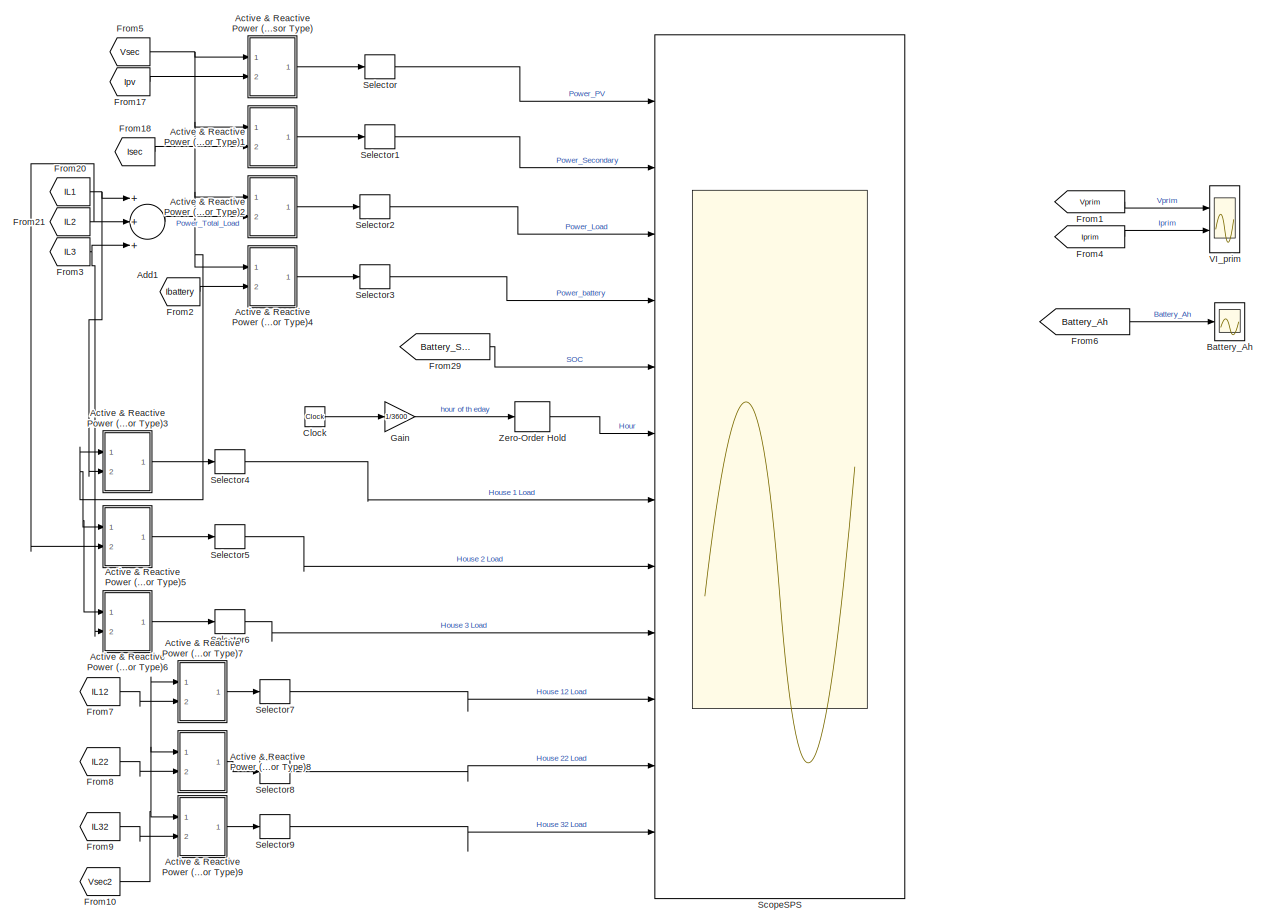
[diagram: Scopes - part 1/1, most of the canvas]
BLOCK [SubSystem] Scopes
  Ports = []
  RequestExecContextInheritance = off
  Variant = off
BLOCK [SubSystem] Scopes/Active & Reactive Power (Phasor Type)
  DialogController = POWERSYS.PowerSysDialog
  Ports = [2, 1]
  RequestExecContextInheritance = off
  Variant = off
BLOCK [ComplexToRealImag] Scopes/Active & Reactive Power (Phasor Type)/Complex to Real-Imag
  Ports = [1, 2]
BLOCK [Inport] Scopes/Active & Reactive Power (Phasor Type)/I
  IconDisplay = Port number
  Port = 2
BLOCK [Gain] Scopes/Active & Reactive Power (Phasor Type)/K
  Gain = 1/2
BLOCK [Math] Scopes/Active & Reactive Power (Phasor Type)/Math Function
  Operator = conj
  Ports = [1, 1]
BLOCK [Mux] Scopes/Active & Reactive Power (Phasor Type)/Mux
  DisplayOption = bar
  Inputs = 2
  Ports = [2, 1]
BLOCK [Outport] Scopes/Active & Reactive Power (Phasor Type)/PQ
  IconDisplay = Port number
BLOCK [Product] Scopes/Active & Reactive Power (Phasor Type)/Product2
  Ports = [2, 1]
  RndMeth = Floor
BLOCK [Inport] Scopes/Active & Reactive Power (Phasor Type)/V
  IconDisplay = Port number
BLOCK [SubSystem] Scopes/Active & Reactive Power (Phasor Type)1
  DialogController = POWERSYS.PowerSysDialog
  Ports = [2, 1]
  RequestExecContextInheritance = off
  Variant = off
BLOCK [ComplexToRealImag] Scopes/Active & Reactive Power (Phasor Type)1/Complex to Real-Imag
  Ports = [1, 2]
BLOCK [Inport] Scopes/Active & Reactive Power (Phasor Type)1/I
  IconDisplay = Port number
  Port = 2
BLOCK [Gain] Scopes/Active & Reactive Power (Phasor Type)1/K
  Gain = 1/2
BLOCK [Math] Scopes/Active & Reactive Power (Phasor Type)1/Math Function
  Operator = conj
  Ports = [1, 1]
BLOCK [Mux] Scopes/Active & Reactive Power (Phasor Type)1/Mux
  DisplayOption = bar
  Inputs = 2
  Ports = [2, 1]
BLOCK [Outport] Scopes/Active & Reactive Power (Phasor Type)1/PQ
  IconDisplay = Port number
BLOCK [Product] Scopes/Active & Reactive Power (Phasor Type)1/Product2
  Ports = [2, 1]
  RndMeth = Floor
BLOCK [Inport] Scopes/Active & Reactive Power (Phasor Type)1/V
  IconDisplay = Port number
BLOCK [SubSystem] Scopes/Active & Reactive Power (Phasor Type)2
  DialogController = POWERSYS.PowerSysDialog
  Ports = [2, 1]
  RequestExecContextInheritance = off
  Variant = off
BLOCK [ComplexToRealImag] Scopes/Active & Reactive Power (Phasor Type)2/Complex to Real-Imag
  Ports = [1, 2]
BLOCK [Inport] Scopes/Active & Reactive Power (Phasor Type)2/I
  IconDisplay = Port number
  Port = 2
BLOCK [Gain] Scopes/Active & Reactive Power (Phasor Type)2/K
  Gain = 1/2
BLOCK [Math] Scopes/Active & Reactive Power (Phasor Type)2/Math Function
  Operator = conj
  Ports = [1, 1]
BLOCK [Mux] Scopes/Active & Reactive Power (Phasor Type)2/Mux
  DisplayOption = bar
  Inputs = 2
  Ports = [2, 1]
BLOCK [Outport] Scopes/Active & Reactive Power (Phasor Type)2/PQ
  IconDisplay = Port number
BLOCK [Product] Scopes/Active & Reactive Power (Phasor Type)2/Product2
  Ports = [2, 1]
  RndMeth = Floor
BLOCK [Inport] Scopes/Active & Reactive Power (Phasor Type)2/V
  IconDisplay = Port number
BLOCK [SubSystem] Scopes/Active & Reactive Power (Phasor Type)3
  DialogController = POWERSYS.PowerSysDialog
  Ports = [2, 1]
  RequestExecContextInheritance = off
  Variant = off
BLOCK [ComplexToRealImag] Scopes/Active & Reactive Power (Phasor Type)3/Complex to Real-Imag
  Ports = [1, 2]
BLOCK [Inport] Scopes/Active & Reactive Power (Phasor Type)3/I
  IconDisplay = Port number
  Port = 2
BLOCK [Gain] Scopes/Active & Reactive Power (Phasor Type)3/K
  Gain = 1/2
BLOCK [Math] Scopes/Active & Reactive Power (Phasor Type)3/Math Function
  Operator = conj
  Ports = [1, 1]
BLOCK [Mux] Scopes/Active & Reactive Power (Phasor Type)3/Mux
  DisplayOption = bar
  Inputs = 2
  Ports = [2, 1]
BLOCK [Outport] Scopes/Active & Reactive Power (Phasor Type)3/PQ
  IconDisplay = Port number
BLOCK [Product] Scopes/Active & Reactive Power (Phasor Type)3/Product2
  Ports = [2, 1]
  RndMeth = Floor
BLOCK [Inport] Scopes/Active & Reactive Power (Phasor Type)3/V
  IconDisplay = Port number
BLOCK [SubSystem] Scopes/Active & Reactive Power (Phasor Type)4
  DialogController = POWERSYS.PowerSysDialog
  Ports = [2, 1]
  RequestExecContextInheritance = off
  Variant = off
BLOCK [ComplexToRealImag] Scopes/Active & Reactive Power (Phasor Type)4/Complex to Real-Imag
  Ports = [1, 2]
BLOCK [Inport] Scopes/Active & Reactive Power (Phasor Type)4/I
  IconDisplay = Port number
  Port = 2
BLOCK [Gain] Scopes/Active & Reactive Power (Phasor Type)4/K
  Gain = 1/2
BLOCK [Math] Scopes/Active & Reactive Power (Phasor Type)4/Math Function
  Operator = conj
  Ports = [1, 1]
BLOCK [Mux] Scopes/Active & Reactive Power (Phasor Type)4/Mux
  DisplayOption = bar
  Inputs = 2
  Ports = [2, 1]
BLOCK [Outport] Scopes/Active & Reactive Power (Phasor Type)4/PQ
  IconDisplay = Port number
BLOCK [Product] Scopes/Active & Reactive Power (Phasor Type)4/Product2
  Ports = [2, 1]
  RndMeth = Floor
BLOCK [Inport] Scopes/Active & Reactive Power (Phasor Type)4/V
  IconDisplay = Port number
BLOCK [SubSystem] Scopes/Active & Reactive Power (Phasor Type)5
  DialogController = POWERSYS.PowerSysDialog
  Ports = [2, 1]
  RequestExecContextInheritance = off
  Variant = off
BLOCK [ComplexToRealImag] Scopes/Active & Reactive Power (Phasor Type)5/Complex to Real-Imag
  Ports = [1, 2]
BLOCK [Inport] Scopes/Active & Reactive Power (Phasor Type)5/I
  IconDisplay = Port number
  Port = 2
BLOCK [Gain] Scopes/Active & Reactive Power (Phasor Type)5/K
  Gain = 1/2
BLOCK [Math] Scopes/Active & Reactive Power (Phasor Type)5/Math Function
  Operator = conj
  Ports = [1, 1]
BLOCK [Mux] Scopes/Active & Reactive Power (Phasor Type)5/Mux
  DisplayOption = bar
  Inputs = 2
  Ports = [2, 1]
BLOCK [Outport] Scopes/Active & Reactive Power (Phasor Type)5/PQ
  IconDisplay = Port number
BLOCK [Product] Scopes/Active & Reactive Power (Phasor Type)5/Product2
  Ports = [2, 1]
  RndMeth = Floor
BLOCK [Inport] Scopes/Active & Reactive Power (Phasor Type)5/V
  IconDisplay = Port number
BLOCK [SubSystem] Scopes/Active & Reactive Power (Phasor Type)6
  DialogController = POWERSYS.PowerSysDialog
  Ports = [2, 1]
  RequestExecContextInheritance = off
  Variant = off
BLOCK [ComplexToRealImag] Scopes/Active & Reactive Power (Phasor Type)6/Complex to Real-Imag
  Ports = [1, 2]
BLOCK [Inport] Scopes/Active & Reactive Power (Phasor Type)6/I
  IconDisplay = Port number
  Port = 2
BLOCK [Gain] Scopes/Active & Reactive Power (Phasor Type)6/K
  Gain = 1/2
BLOCK [Math] Scopes/Active & Reactive Power (Phasor Type)6/Math Function
  Operator = conj
  Ports = [1, 1]
BLOCK [Mux] Scopes/Active & Reactive Power (Phasor Type)6/Mux
  DisplayOption = bar
  Inputs = 2
  Ports = [2, 1]
BLOCK [Outport] Scopes/Active & Reactive Power (Phasor Type)6/PQ
  IconDisplay = Port number
BLOCK [Product] Scopes/Active & Reactive Power (Phasor Type)6/Product2
  Ports = [2, 1]
  RndMeth = Floor
BLOCK [Inport] Scopes/Active & Reactive Power (Phasor Type)6/V
  IconDisplay = Port number
BLOCK [SubSystem] Scopes/Active & Reactive Power (Phasor Type)7
  DialogController = POWERSYS.PowerSysDialog
  Ports = [2, 1]
  RequestExecContextInheritance = off
  Variant = off
BLOCK [ComplexToRealImag] Scopes/Active & Reactive Power (Phasor Type)7/Complex to Real-Imag
  Ports = [1, 2]
BLOCK [Inport] Scopes/Active & Reactive Power (Phasor Type)7/I
  IconDisplay = Port number
  Port = 2
BLOCK [Gain] Scopes/Active & Reactive Power (Phasor Type)7/K
  Gain = 1/2
BLOCK [Math] Scopes/Active & Reactive Power (Phasor Type)7/Math Function
  Operator = conj
  Ports = [1, 1]
BLOCK [Mux] Scopes/Active & Reactive Power (Phasor Type)7/Mux
  DisplayOption = bar
  Inputs = 2
  Ports = [2, 1]
BLOCK [Outport] Scopes/Active & Reactive Power (Phasor Type)7/PQ
  IconDisplay = Port number
BLOCK [Product] Scopes/Active & Reactive Power (Phasor Type)7/Product2
  Ports = [2, 1]
  RndMeth = Floor
BLOCK [Inport] Scopes/Active & Reactive Power (Phasor Type)7/V
  IconDisplay = Port number
BLOCK [SubSystem] Scopes/Active & Reactive Power (Phasor Type)8
  DialogController = POWERSYS.PowerSysDialog
  Ports = [2, 1]
  RequestExecContextInheritance = off
  Variant = off
BLOCK [ComplexToRealImag] Scopes/Active & Reactive Power (Phasor Type)8/Complex to Real-Imag
  Ports = [1, 2]
BLOCK [Inport] Scopes/Active & Reactive Power (Phasor Type)8/I
  IconDisplay = Port number
  Port = 2
BLOCK [Gain] Scopes/Active & Reactive Power (Phasor Type)8/K
  Gain = 1/2
BLOCK [Math] Scopes/Active & Reactive Power (Phasor Type)8/Math Function
  Operator = conj
  Ports = [1, 1]
BLOCK [Mux] Scopes/Active & Reactive Power (Phasor Type)8/Mux
  DisplayOption = bar
  Inputs = 2
  Ports = [2, 1]
BLOCK [Outport] Scopes/Active & Reactive Power (Phasor Type)8/PQ
  IconDisplay = Port number
BLOCK [Product] Scopes/Active & Reactive Power (Phasor Type)8/Product2
  Ports = [2, 1]
  RndMeth = Floor
BLOCK [Inport] Scopes/Active & Reactive Power (Phasor Type)8/V
  IconDisplay = Port number
BLOCK [SubSystem] Scopes/Active & Reactive Power (Phasor Type)9
  DialogController = POWERSYS.PowerSysDialog
  Ports = [2, 1]
  RequestExecContextInheritance = off
  Variant = off
BLOCK [ComplexToRealImag] Scopes/Active & Reactive Power (Phasor Type)9/Complex to Real-Imag
  Ports = [1, 2]
BLOCK [Inport] Scopes/Active & Reactive Power (Phasor Type)9/I
  IconDisplay = Port number
  Port = 2
BLOCK [Gain] Scopes/Active & Reactive Power (Phasor Type)9/K
  Gain = 1/2
BLOCK [Math] Scopes/Active & Reactive Power (Phasor Type)9/Math Function
  Operator = conj
  Ports = [1, 1]
BLOCK [Mux] Scopes/Active & Reactive Power (Phasor Type)9/Mux
  DisplayOption = bar
  Inputs = 2
  Ports = [2, 1]
BLOCK [Outport] Scopes/Active & Reactive Power (Phasor Type)9/PQ
  IconDisplay = Port number
BLOCK [Product] Scopes/Active & Reactive Power (Phasor Type)9/Product2
  Ports = [2, 1]
  RndMeth = Floor
BLOCK [Inport] Scopes/Active & Reactive Power (Phasor Type)9/V
  IconDisplay = Port number
BLOCK [Sum] Scopes/Add1
  InputSameDT = off
  Inputs = +++
  OutDataTypeStr = Inherit: Inherit via internal rule
  Ports = [3, 1]
  SaturateOnIntegerOverflow = off
BLOCK [Scope] Scopes/Battery_Ah
  NumInputPorts = 1
  Ports = [1]
  ScopeSpecificationString = C++SS(StrPVP('Location','[535, 288, 1255, 995]'),StrPVP('Open','off'),StrPVP('ZoomMode','yonly'),MxPVP('AxesTitles',24,'struct(''axes1'',''%<SignalLabel>'')'),MxPVP('ScopeGraphics',28,'struct(''FigureColor'',''[0.5 0.5 0.5]'',''AxesColor'',''[0 0 0]'',''AxesTickColor'',''[1 1 1]'',''LineColors'',''[1 1 0;1 0 1;0 1 1;1 0 0;0 1 0;0 0 1]'',''LineStyles'',''-|-|-|-|-|-'',''LineWidths'',''[0.5 0.5 0.5 ...<+341ch>
BLOCK [Clock] Scopes/Clock
  Decimation = 1
BLOCK [From] Scopes/From1
  GotoTag = Vprim
  TagVisibility = global
BLOCK [From] Scopes/From10
  GotoTag = Vsec2
  TagVisibility = global
BLOCK [From] Scopes/From17
  GotoTag = Ipv
  TagVisibility = global
BLOCK [From] Scopes/From18
  GotoTag = Isec
  TagVisibility = global
BLOCK [From] Scopes/From2
  GotoTag = Ibattery
  TagVisibility = global
BLOCK [From] Scopes/From20
  GotoTag = IL1
  TagVisibility = global
BLOCK [From] Scopes/From21
  GotoTag = IL2
  TagVisibility = global
BLOCK [From] Scopes/From29
  GotoTag = Battery_SOC
  TagVisibility = global
BLOCK [From] Scopes/From3
  GotoTag = IL3
  TagVisibility = global
BLOCK [From] Scopes/From4
  GotoTag = Iprim
  TagVisibility = global
BLOCK [From] Scopes/From5
  GotoTag = Vsec
  TagVisibility = global
BLOCK [From] Scopes/From6
  GotoTag = Battery_Ah
  TagVisibility = global
BLOCK [From] Scopes/From7
  GotoTag = IL12
  TagVisibility = global
BLOCK [From] Scopes/From8
  GotoTag = IL22
  TagVisibility = global
BLOCK [From] Scopes/From9
  GotoTag = IL32
  TagVisibility = global
BLOCK [Gain] Scopes/Gain
  Gain = 1/3600
  OutDataTypeStr = Inherit: Inherit via internal rule
  ParamDataTypeStr = Inherit: Inherit via internal rule
  SaturateOnIntegerOverflow = off
BLOCK [Scope] Scopes/ScopeSPS
  NumInputPorts = 12
  Ports = [12]
  ScopeSpecificationString = Simulink.scopes.TimeScopeBlockCfg('CurrentConfiguration', extmgr.ConfigurationSet(extmgr.Configuration('Core','General UI',true),extmgr.Configuration('Core','Source UI',true),extmgr.Configuration('Sources','WiredSimulink',true,'DataLogging',true,'DataLoggingVariableName','ScopeSPS','DataLoggingSaveFormat','StructureWithTime','DataLoggingDecimation','1','DataLoggingDecimateData',true),extmgr.Config...<+12049ch>
BLOCK [Selector] Scopes/Selector
  IndexOptions = Index vector (dialog)
  Indices = 1
  InputPortWidth = 2
  OutputSizes = 1
  Ports = [1, 1]
BLOCK [Selector] Scopes/Selector1
  IndexOptions = Index vector (dialog)
  Indices = 1
  InputPortWidth = 2
  OutputSizes = 1
  Ports = [1, 1]
BLOCK [Selector] Scopes/Selector2
  IndexOptions = Index vector (dialog)
  Indices = 1
  InputPortWidth = 2
  OutputSizes = 1
  Ports = [1, 1]
BLOCK [Selector] Scopes/Selector3
  IndexOptions = Index vector (dialog)
  Indices = 1
  InputPortWidth = 2
  OutputSizes = 1
  Ports = [1, 1]
BLOCK [Selector] Scopes/Selector4
  IndexOptions = Index vector (dialog)
  Indices = 1
  InputPortWidth = 2
  OutputSizes = 1
  Ports = [1, 1]
BLOCK [Selector] Scopes/Selector5
  IndexOptions = Index vector (dialog)
  Indices = 1
  InputPortWidth = 2
  OutputSizes = 1
  Ports = [1, 1]
BLOCK [Selector] Scopes/Selector6
  IndexOptions = Index vector (dialog)
  Indices = 1
  InputPortWidth = 2
  OutputSizes = 1
  Ports = [1, 1]
BLOCK [Selector] Scopes/Selector7
  IndexOptions = Index vector (dialog)
  Indices = 1
  InputPortWidth = 2
  OutputSizes = 1
  Ports = [1, 1]
BLOCK [Selector] Scopes/Selector8
  IndexOptions = Index vector (dialog)
  Indices = 1
  InputPortWidth = 2
  OutputSizes = 1
  Ports = [1, 1]
BLOCK [Selector] Scopes/Selector9
  IndexOptions = Index vector (dialog)
  Indices = 1
  InputPortWidth = 2
  OutputSizes = 1
  Ports = [1, 1]
BLOCK [Scope] Scopes/VI_prim
  NumInputPorts = 2
  Ports = [2]
  ScopeSpecificationString = C++SS(StrPVP('Location','[486, 109, 1206, 1034]'),StrPVP('Open','off'),StrPVP('ZoomMode','yonly'),MxPVP('AxesTitles',24,'struct(''axes1'',''%<SignalLabel>'',''axes2'',''%<SignalLabel>'')'),MxPVP('ScopeGraphics',28,'struct(''FigureColor'',''[0.5 0.5 0.5]'',''AxesColor'',''[0 0 0]'',''AxesTickColor'',''[1 1 1]'',''LineColors'',''[1 1 0;1 0 1;0 1 1;1 0 0;0 1 0;0 0 1]'',''LineStyles'',''-|-|-|-|-|-'',...<+346ch>
BLOCK [ZeroOrderHold] Scopes/Zero-Order Hold
  SampleTime = 3600
BLOCK [Reference] Series RLC Load  REF=powerlib/Elements/Series RLC Load
  AttributesFormatString = \n
  Ports = [0, 0, 0, 0, 0, 1, 1]
  SourceBlock = powerlib/Elements/Series RLC Load
  SourceType = Series RLC Load
BLOCK [Reference] Series RLC Load1  REF=powerlib/Elements/Series RLC Load
  AttributesFormatString = \n
  Ports = [0, 0, 0, 0, 0, 1, 1]
  SourceBlock = powerlib/Elements/Series RLC Load
  SourceType = Series RLC Load
BLOCK [Reference] Series RLC Load2  REF=powerlib/Elements/Series RLC Load
  AttributesFormatString = \n
  Ports = [0, 0, 0, 0, 0, 1, 1]
  SourceBlock = powerlib/Elements/Series RLC Load
  SourceType = Series RLC Load
BLOCK [Reference] Series RLC Load3  REF=powerlib/Elements/Series RLC Load
  AttributesFormatString = \n
  Ports = [0, 0, 0, 0, 0, 1, 1]
  SourceBlock = powerlib/Elements/Series RLC Load
  SourceType = Series RLC Load
BLOCK [Reference] Series RLC Load4  REF=powerlib/Elements/Series RLC Load
  AttributesFormatString = \n
  Ports = [0, 0, 0, 0, 0, 1, 1]
  SourceBlock = powerlib/Elements/Series RLC Load
  SourceType = Series RLC Load
BLOCK [Reference] Series RLC Load5  REF=powerlib/Elements/Series RLC Load
  AttributesFormatString = \n
  Ports = [0, 0, 0, 0, 0, 1, 1]
  SourceBlock = powerlib/Elements/Series RLC Load
  SourceType = Series RLC Load
BLOCK [SubSystem] Subsystem
  Ports = [1, 2]
  RequestExecContextInheritance = off
  Variant = off
BLOCK [Sum] Subsystem/Add
  InputSameDT = off
  Inputs = +-
  OutDataTypeStr = Inherit: Inherit via internal rule
  Ports = [2, 1]
  SaturateOnIntegerOverflow = off
BLOCK [Outport] Subsystem/Battery_Ah
  IconDisplay = Port number
BLOCK [Outport] Subsystem/Battery_SOC
  IconDisplay = Port number
  Port = 2
BLOCK [Constant] Subsystem/Constant
  Value = AH*0.2*3600
BLOCK [Constant] Subsystem/Constant1
BLOCK [Gain] Subsystem/Gain
  Gain = 1/3600
  OutDataTypeStr = Inherit: Inherit via internal rule
  ParamDataTypeStr = Inherit: Inherit via internal rule
  SaturateOnIntegerOverflow = off
BLOCK [Gain] Subsystem/Gain3
  Gain = 1/(AH*3600)
  OutDataTypeStr = Inherit: Inherit via internal rule
  ParamDataTypeStr = Inherit: Inherit via internal rule
  SaturateOnIntegerOverflow = off
BLOCK [Gain] Subsystem/Gain8
  Gain = 100
  OutDataTypeStr = Inherit: Inherit via internal rule
  ParamDataTypeStr = Inherit: Inherit via internal rule
  SaturateOnIntegerOverflow = off
BLOCK [Inport] Subsystem/I_RMS
  IconDisplay = Port number
BLOCK [Integrator] Subsystem/Integrator
  Ports = [1, 1]
BLOCK [Integrator] Subsystem/Integrator1
  InitialConditionSource = external
  Ports = [2, 1]
BLOCK [SubSystem] Subsystem1
  Ports = [1, 2]
  RequestExecContextInheritance = off
  Variant = off
BLOCK [Sum] Subsystem1/Add
  InputSameDT = off
  Inputs = +-
  OutDataTypeStr = Inherit: Inherit via internal rule
  Ports = [2, 1]
  SaturateOnIntegerOverflow = off
BLOCK [Outport] Subsystem1/Battery_Ah
  IconDisplay = Port number
BLOCK [Outport] Subsystem1/Battery_SOC
  IconDisplay = Port number
  Port = 2
BLOCK [Constant] Subsystem1/Constant
  Value = AH*0.2*3600
BLOCK [Constant] Subsystem1/Constant1
BLOCK [Gain] Subsystem1/Gain
  Gain = 1/3600
  OutDataTypeStr = Inherit: Inherit via internal rule
  ParamDataTypeStr = Inherit: Inherit via internal rule
  SaturateOnIntegerOverflow = off
BLOCK [Gain] Subsystem1/Gain3
  Gain = 1/(AH*3600)
  OutDataTypeStr = Inherit: Inherit via internal rule
  ParamDataTypeStr = Inherit: Inherit via internal rule
  SaturateOnIntegerOverflow = off
BLOCK [Gain] Subsystem1/Gain8
  Gain = 100
  OutDataTypeStr = Inherit: Inherit via internal rule
  ParamDataTypeStr = Inherit: Inherit via internal rule
  SaturateOnIntegerOverflow = off
BLOCK [Inport] Subsystem1/I_RMS
  IconDisplay = Port number
BLOCK [Integrator] Subsystem1/Integrator
  Ports = [1, 1]
BLOCK [Integrator] Subsystem1/Integrator1
  InitialConditionSource = external
  Ports = [2, 1]
BLOCK [Reference] Three-Phase Source  REF=powerlib/Electrical
Sources/Three-Phase Source
  Ports = [0, 0, 0, 0, 0, 0, 3]
  SourceBlock = powerlib/Electrical\nSources/Three-Phase Source
  SourceType = Three-Phase Source
BLOCK [Reference] Voltage Measurement  REF=powerlib/Measurements/Voltage Measurement
  Ports = [0, 1, 0, 0, 0, 2]
  SourceBlock = powerlib/Measurements/Voltage Measurement
  SourceType = Voltage Measurement
BLOCK [Reference] Voltage Measurement1  REF=powerlib/Measurements/Voltage Measurement
  Ports = [0, 1, 0, 0, 0, 2]
  SourceBlock = powerlib/Measurements/Voltage Measurement
  SourceType = Voltage Measurement
BLOCK [Reference] Voltage Measurement2  REF=powerlib/Measurements/Voltage Measurement
  Ports = [0, 1, 0, 0, 0, 2]
  SourceBlock = powerlib/Measurements/Voltage Measurement
  SourceType = Voltage Measurement
BLOCK [Reference] Voltage Measurement3  REF=powerlib/Measurements/Voltage Measurement
  Ports = [0, 1, 0, 0, 0, 2]
  SourceBlock = powerlib/Measurements/Voltage Measurement
  SourceType = Voltage Measurement
BLOCK [Reference] meas cur1  REF=powerlib/Measurements/Current Measurement
  Ports = [0, 1, 0, 0, 0, 1, 1]
  SourceBlock = powerlib/Measurements/Current Measurement
  SourceType = Current Measurement
BLOCK [Reference] meas cur2  REF=powerlib/Measurements/Current Measurement
  Ports = [0, 1, 0, 0, 0, 1, 1]
  SourceBlock = powerlib/Measurements/Current Measurement
  SourceType = Current Measurement
BLOCK [Reference] meas cur3  REF=powerlib/Measurements/Current Measurement
  Ports = [0, 1, 0, 0, 0, 1, 1]
  SourceBlock = powerlib/Measurements/Current Measurement
  SourceType = Current Measurement
BLOCK [Reference] meas cur4  REF=powerlib/Measurements/Current Measurement
  Ports = [0, 1, 0, 0, 0, 1, 1]
  SourceBlock = powerlib/Measurements/Current Measurement
  SourceType = Current Measurement
BLOCK [Reference] powergui  REF=powerlib/powergui
  Ports = []
  SourceBlock = powerlib/powergui
  SourceType = PSB option menu block
ANNOTATION (root): Battery
ANNOTATION (root): Battery Controller
ANNOTATION (root): Battery_Simple_Dynamics
ANNOTATION (root): House1
ANNOTATION (root): House2
ANNOTATION (root): House3
ANNOTATION (root): Pole Mounted Transformer
ANNOTATION (root): Power Grid
ANNOTATION (root): Scenario
ANNOTATION (root): Scenario2
ANNOTATION (root): Scopes
ANNOTATION (root): Simplified Model of a Small Scaled Micro-Grid
ANNOTATION (root): Simplified Model of a Small Scaled Micro-Grid2
ANNOTATION (root): Solar Panel
LINE Battery/In1:1 -> Battery/Controlled Current Source1:1
LINE Battery/meas cur6:1 -> Battery/Out1:1
LINE Battery1/In1:1 -> Battery1/Controlled Current Source1:1
LINE Battery1/meas cur6:1 -> Battery1/Out1:1
LINE Battery1:1 -> Goto19:1
LINE Battery:1 -> Goto11:1
LINE Battery_Control/Active & Reactive Power (Phasor Type):1 -> Battery_Control/Demux:1
LINE Battery_Control/Add6:1 -> Battery_Control/Integral Gain:1
NET Battery_Control/Demux:1 -> Battery_Control/Add6:2, Battery_Control/Switch:3
LINE Battery_Control/Demux:2 -> Battery_Control/Terminator:1
LINE Battery_Control/I:1 -> Battery_Control/Active & Reactive Power (Phasor Type):2
LINE Battery_Control/Integral Gain:1 -> Battery_Control/Integrator:1
LINE Battery_Control/Integrator:1 -> Battery_Control/I_RMS:1
NET Battery_Control/On:1 -> Battery_Control/Integrator:2, Battery_Control/Switch:2
LINE Battery_Control/Pref:1 -> Battery_Control/Switch:1
LINE Battery_Control/Switch:1 -> Battery_Control/Add6:1
LINE Battery_Control/V:1 -> Battery_Control/Active & Reactive Power (Phasor Type):1
LINE Battery_Control2/Active & Reactive Power (Phasor Type):1 -> Battery_Control2/Demux:1
LINE Battery_Control2/Add6:1 -> Battery_Control2/Integral Gain:1
NET Battery_Control2/Demux:1 -> Battery_Control2/Add6:2, Battery_Control2/Switch:3
LINE Battery_Control2/Demux:2 -> Battery_Control2/Terminator:1
LINE Battery_Control2/I2:1 -> Battery_Control2/Active & Reactive Power (Phasor Type):2
LINE Battery_Control2/Integral Gain:1 -> Battery_Control2/Integrator:1
LINE Battery_Control2/Integrator:1 -> Battery_Control2/I_RMS2:1
NET Battery_Control2/On2:1 -> Battery_Control2/Integrator:2, Battery_Control2/Switch:2
LINE Battery_Control2/Pref:1 -> Battery_Control2/Switch:1
LINE Battery_Control2/Switch:1 -> Battery_Control2/Add6:1
LINE Battery_Control2/V2:1 -> Battery_Control2/Active & Reactive Power (Phasor Type):1
NET Battery_Control2:1 -> Magnitude-Angle to Complex1:1, Subsystem1:1
NET Battery_Control:1 -> Magnitude-Angle to Complex:1, Subsystem:1
LINE From10:1 -> Battery_Control2:1
LINE From11:1 -> Magnitude-Angle to Complex1:2
LINE From12:1 -> Battery_Control2:2
LINE From13:1 -> House 1:1
LINE From14:1 -> House 2:1
NET From15:1 -> Battery_Ah1:1, Battery_Control2:3
LINE From16:1 -> Product1:1
LINE From1:1 -> Battery:1
LINE From22:1 -> House 3:1
LINE From23:1 -> Battery_Control:1
LINE From24:1 -> Magnitude-Angle to Complex:2
LINE From25:1 -> Battery_Control:2
LINE From2:1 -> Scenario:1
NET From3:1 -> Battery_Ah:1, Battery_Control:3
LINE From4:1 -> Product:1
LINE From5:1 -> Battery1:1
LINE From6:1 -> House 4:1
LINE From7:1 -> House 5:1
LINE From8:1 -> Scenario1:1
LINE From9:1 -> House 6:1
LINE Gain1:1 -> Goto22:1
LINE Gain3:1 -> Goto14:1
LINE House 1/In1:1 -> House 1/Controlled Current Source4:1
LINE House 1/meas cur2:1 -> House 1/Out1:1
LINE House 1:1 -> Goto6:1
LINE House 2/In1:1 -> House 2/Controlled Current Source4:1
LINE House 2/meas cur2:1 -> House 2/Out1:1
LINE House 2:1 -> Goto1:1
LINE House 3/In1:1 -> House 3/Controlled Current Source4:1
LINE House 3/meas cur2:1 -> House 3/Out1:1
LINE House 3:1 -> Goto10:1
LINE House 4/In1:1 -> House 4/Controlled Current Source4:1
LINE House 4/meas cur2:1 -> House 4/Out1:1
LINE House 4:1 -> Goto30:1
LINE House 5/In1:1 -> House 5/Controlled Current Source4:1
LINE House 5/meas cur2:1 -> House 5/Out1:1
LINE House 5:1 -> Goto8:1
LINE House 6/In1:1 -> House 6/Controlled Current Source4:1
LINE House 6/meas cur2:1 -> House 6/Out1:1
LINE House 6:1 -> Goto18:1
LINE Interpreted MATLAB Function1:1 -> HouseMeter2:1
LINE Interpreted MATLAB Function2:1 -> HouseMeter1:1
LINE Interpreted MATLAB Function3:1 -> Main Breaker3:1
LINE Interpreted MATLAB Function4:1 -> HouseMeter3 1:1
LINE Interpreted MATLAB Function5:1 -> HouseMeter4:1
LINE Interpreted MATLAB Function6:1 -> HouseMeter3:1
LINE Interpreted MATLAB Function7:1 -> Main Breaker1:1
LINE Interpreted MATLAB Function:1 -> HouseMeter3 :1
LINE Magnitude-Angle to Complex1:1 -> Gain1:1
LINE Magnitude-Angle to Complex:1 -> Gain3:1
LINE PV/In1:1 -> PV/Controlled Current Source:1
LINE PV/meas cur3:1 -> PV/Out1:1
LINE PV1/In1:1 -> PV1/Controlled Current Source:1
LINE PV1/meas cur3:1 -> PV1/Out1:1
LINE PV1:1 -> Goto27:1
LINE PV:1 -> Goto3:1
LINE Partial Shading/Add:1 -> Partial Shading/Out:1
NET Partial Shading/Clock:1 -> Partial Shading/Compare To Constant1:1, Partial Shading/Compare To Constant:1
LINE Partial Shading/Compare To Constant1:1 -> Partial Shading/Logical Operator:2
LINE Partial Shading/Compare To Constant:1 -> Partial Shading/Logical Operator:1
LINE Partial Shading/Constant:1 -> Partial Shading/Product:2
LINE Partial Shading/Logical Operator1:1 -> Partial Shading/Add:1
NET Partial Shading/Logical Operator:1 -> Partial Shading/Logical Operator1:1, Partial Shading/Product:1
LINE Partial Shading/Product:1 -> Partial Shading/Add:2
LINE Partial Shading1/Add:1 -> Partial Shading1/Out:1
NET Partial Shading1/Clock:1 -> Partial Shading1/Compare To Constant1:1, Partial Shading1/Compare To Constant:1
LINE Partial Shading1/Compare To Constant1:1 -> Partial Shading1/Logical Operator:2
LINE Partial Shading1/Compare To Constant:1 -> Partial Shading1/Logical Operator:1
LINE Partial Shading1/Constant:1 -> Partial Shading1/Product:2
LINE Partial Shading1/Logical Operator1:1 -> Partial Shading1/Add:1
NET Partial Shading1/Logical Operator:1 -> Partial Shading1/Logical Operator1:1, Partial Shading1/Product:1
LINE Partial Shading1/Product:1 -> Partial Shading1/Add:2
LINE Partial Shading1:1 -> Product1:2
LINE Partial Shading:1 -> Product:2
LINE Product1:1 -> PV1:1
LINE Product:1 -> PV:1
LINE Scenario/Add:1 -> Scenario/Switch8:2
NET Scenario/Clock:1 -> Scenario/Load Data 1-D Lookup Table:1, Scenario/Solar Data 1-D Lookup Table:1
NET Scenario/Complex to Magnitude-Angle:1 -> Scenario/Goto18:1, Scenario/Magnitude-Angle to Complex1:2
LINE Scenario/Constant3:1 -> Scenario/Switch8:3
LINE Scenario/Constant4:1 -> Scenario/Switch8:1
NET Scenario/Demux:1 -> Scenario/Load1_I:1, Scenario/Load2_I:1, Scenario/Load3_I:1
LINE Scenario/Demux:2 -> Scenario/PV_I:1
LINE Scenario/Gain10:1 -> Scenario/Magnitude-Angle to Complex1:1
LINE Scenario/Gain2:1 -> Scenario/Mux:1
LINE Scenario/Gain5:1 -> Scenario/Mux:2
LINE Scenario/Gain6:1 -> Scenario/Gain2:1
LINE Scenario/Load Data 1-D Lookup Table:1 -> Scenario/Gain6:1
LINE Scenario/Magnitude-Angle to Complex1:1 -> Scenario/Demux:1
LINE Scenario/Mux:1 -> Scenario/Gain10:1
LINE Scenario/Solar Data 1-D Lookup Table:1 -> Scenario/Gain5:1
LINE Scenario/Step_Off:1 -> Scenario/Add:1
LINE Scenario/Step_On:1 -> Scenario/Add:2
LINE Scenario/Switch8:1 -> Scenario/Goto8:1
LINE Scenario/Vsec:1 -> Scenario/Complex to Magnitude-Angle:1
LINE Scenario1/Add:1 -> Scenario1/Switch8:2
NET Scenario1/Clock:1 -> Scenario1/Load Data 1-D Lookup Table:1, Scenario1/Solar Data 1-D Lookup Table:1
NET Scenario1/Complex to Magnitude-Angle:1 -> Scenario1/Goto18:1, Scenario1/Magnitude-Angle to Complex1:2
LINE Scenario1/Constant3:1 -> Scenario1/Switch8:3
LINE Scenario1/Constant4:1 -> Scenario1/Switch8:1
NET Scenario1/Demux:1 -> Scenario1/Load1_I2:1, Scenario1/Load2_I2:1, Scenario1/Load3_I2:1
LINE Scenario1/Demux:2 -> Scenario1/PV_I2:1
LINE Scenario1/Gain10:1 -> Scenario1/Magnitude-Angle to Complex1:1
LINE Scenario1/Gain2:1 -> Scenario1/Mux:1
LINE Scenario1/Gain5:1 -> Scenario1/Mux:2
LINE Scenario1/Gain6:1 -> Scenario1/Gain2:1
LINE Scenario1/Load Data 1-D Lookup Table:1 -> Scenario1/Gain6:1
LINE Scenario1/Magnitude-Angle to Complex1:1 -> Scenario1/Demux:1
LINE Scenario1/Mux:1 -> Scenario1/Gain10:1
LINE Scenario1/Solar Data 1-D Lookup Table:1 -> Scenario1/Gain5:1
LINE Scenario1/Step_Off:1 -> Scenario1/Add:1
LINE Scenario1/Step_On:1 -> Scenario1/Add:2
LINE Scenario1/Switch8:1 -> Scenario1/Goto8:1
LINE Scenario1/Vsec:1 -> Scenario1/Complex to Magnitude-Angle:1
LINE Scenario1:1 -> Goto24:1
LINE Scenario1:2 -> Goto31:1
LINE Scenario1:3 -> Goto20:1
LINE Scenario1:4 -> Goto21:1
LINE Scenario:1 -> Goto16:1
LINE Scenario:2 -> Goto9:1
LINE Scenario:3 -> Goto12:1
LINE Scenario:4 -> Goto13:1
LINE Scopes/Active & Reactive Power (Phasor Type)1:1 -> Scopes/Selector1:1
LINE Scopes/Active & Reactive Power (Phasor Type)2:1 -> Scopes/Selector2:1
LINE Scopes/Active & Reactive Power (Phasor Type)3:1 -> Scopes/Selector4:1
LINE Scopes/Active & Reactive Power (Phasor Type)4:1 -> Scopes/Selector3:1
LINE Scopes/Active & Reactive Power (Phasor Type)5:1 -> Scopes/Selector5:1
LINE Scopes/Active & Reactive Power (Phasor Type)6:1 -> Scopes/Selector6:1
LINE Scopes/Active & Reactive Power (Phasor Type)7:1 -> Scopes/Selector7:1
LINE Scopes/Active & Reactive Power (Phasor Type)8:1 -> Scopes/Selector8:1
LINE Scopes/Active & Reactive Power (Phasor Type)9:1 -> Scopes/Selector9:1
LINE Scopes/Active & Reactive Power (Phasor Type):1 -> Scopes/Selector:1
LINE Scopes/Add1:1 -> Scopes/Active & Reactive Power (Phasor Type)2:2
LINE Scopes/Clock:1 -> Scopes/Gain:1
NET Scopes/From10:1 -> Scopes/Active & Reactive Power (Phasor Type)7:1, Scopes/Active & Reactive Power (Phasor Type)8:1, Scopes/Active & Reactive Power (Phasor Type)9:1
LINE Scopes/From17:1 -> Scopes/Active & Reactive Power (Phasor Type):2
LINE Scopes/From18:1 -> Scopes/Active & Reactive Power (Phasor Type)1:2
LINE Scopes/From1:1 -> Scopes/VI_prim:1
NET Scopes/From20:1 -> Scopes/Active & Reactive Power (Phasor Type)3:2, Scopes/Add1:1
NET Scopes/From21:1 -> Scopes/Active & Reactive Power (Phasor Type)5:2, Scopes/Add1:2
LINE Scopes/From29:1 -> Scopes/ScopeSPS:5
LINE Scopes/From2:1 -> Scopes/Active & Reactive Power (Phasor Type)4:2
NET Scopes/From3:1 -> Scopes/Active & Reactive Power (Phasor Type)6:2, Scopes/Add1:3
LINE Scopes/From4:1 -> Scopes/VI_prim:2
NET Scopes/From5:1 -> Scopes/Active & Reactive Power (Phasor Type)1:1, Scopes/Active & Reactive Power (Phasor Type)2:1, Scopes/Active & Reactive Power (Phasor Type)3:1, Scopes/Active & Reactive Power (Phasor Type)4:1, Scopes/Active & Reactive Power (Phasor Type)5:1, Scopes/Active & Reactive Power (Phasor Type)6:1, Scopes/Active & Reactive Power (Phasor Type):1
LINE Scopes/From6:1 -> Scopes/Battery_Ah:1
LINE Scopes/From7:1 -> Scopes/Active & Reactive Power (Phasor Type)7:2
LINE Scopes/From8:1 -> Scopes/Active & Reactive Power (Phasor Type)8:2
LINE Scopes/From9:1 -> Scopes/Active & Reactive Power (Phasor Type)9:2
LINE Scopes/Gain:1 -> Scopes/Zero-Order Hold:1
LINE Scopes/Selector1:1 -> Scopes/ScopeSPS:2
LINE Scopes/Selector2:1 -> Scopes/ScopeSPS:3
LINE Scopes/Selector3:1 -> Scopes/ScopeSPS:4
LINE Scopes/Selector4:1 -> Scopes/ScopeSPS:7
LINE Scopes/Selector5:1 -> Scopes/ScopeSPS:8
LINE Scopes/Selector6:1 -> Scopes/ScopeSPS:9
LINE Scopes/Selector7:1 -> Scopes/ScopeSPS:10
LINE Scopes/Selector8:1 -> Scopes/ScopeSPS:11
LINE Scopes/Selector9:1 -> Scopes/ScopeSPS:12
LINE Scopes/Selector:1 -> Scopes/ScopeSPS:1
LINE Scopes/Zero-Order Hold:1 -> Scopes/ScopeSPS:6
LINE Subsystem/Add:1 -> Subsystem/Gain8:1
LINE Subsystem/Constant1:1 -> Subsystem/Add:1
LINE Subsystem/Constant:1 -> Subsystem/Integrator1:2
LINE Subsystem/Gain3:1 -> Subsystem/Add:2
LINE Subsystem/Gain8:1 -> Subsystem/Battery_SOC:1
LINE Subsystem/Gain:1 -> Subsystem/Battery_Ah:1
NET Subsystem/I_RMS:1 -> Subsystem/Integrator1:1, Subsystem/Integrator:1
LINE Subsystem/Integrator1:1 -> Subsystem/Gain3:1
LINE Subsystem/Integrator:1 -> Subsystem/Gain:1
LINE Subsystem1/Add:1 -> Subsystem1/Gain8:1
LINE Subsystem1/Constant1:1 -> Subsystem1/Add:1
LINE Subsystem1/Constant:1 -> Subsystem1/Integrator1:2
LINE Subsystem1/Gain3:1 -> Subsystem1/Add:2
LINE Subsystem1/Gain8:1 -> Subsystem1/Battery_SOC:1
LINE Subsystem1/Gain:1 -> Subsystem1/Battery_Ah:1
NET Subsystem1/I_RMS:1 -> Subsystem1/Integrator1:1, Subsystem1/Integrator:1
LINE Subsystem1/Integrator1:1 -> Subsystem1/Gain3:1
LINE Subsystem1/Integrator:1 -> Subsystem1/Gain:1
LINE Subsystem1:1 -> Goto23:1
LINE Subsystem1:2 -> Goto25:1
LINE Subsystem:1 -> Goto15:1
LINE Subsystem:2 -> Goto17:1
LINE Voltage Measurement1:1 -> Goto4:1
LINE Voltage Measurement2:1 -> Goto7:1
LINE Voltage Measurement3:1 -> Goto28:1
LINE Voltage Measurement:1 -> Goto:1
LINE meas cur1:1 -> Goto2:1
LINE meas cur2:1 -> Goto26:1
LINE meas cur3:1 -> Goto29:1
LINE meas cur4:1 -> Goto5:1
PNET net1: 6.6kvTr1:LConn1 -- 6.6kvTr:LConn1 -- Three-Phase Source:RConn1
PNET net2: 6.6kvTr1:LConn2 -- 6.6kvTr:LConn2 -- Three-Phase Source:RConn2
PNET net3: 6.6kvTr1:LConn3 -- 6.6kvTr:LConn3 -- Three-Phase Source:RConn3
PLINE 6.6kvTr1:RConn1 -- SEND2:LConn1
PLINE 6.6kvTr1:RConn2 -- SEND2:LConn2
PLINE 6.6kvTr1:RConn3 -- SEND2:LConn3
PLINE 6.6kvTr:RConn1 -- SEND1:LConn1
PLINE 6.6kvTr:RConn2 -- SEND1:LConn2
PLINE 6.6kvTr:RConn3 -- SEND1:LConn3
PLINE Battery/Conn1:RConn1 -- Battery/meas cur6:RConn1
PNET net4: Battery/Controlled Current Source1:LConn1 -- Battery/Ground3:LConn1 -- Battery/Snubber:RConn1
PNET net5: Battery/Controlled Current Source1:RConn1 -- Battery/Snubber:LConn1 -- Battery/meas cur6:LConn1
PLINE Battery1/Conn1:RConn1 -- Battery1/meas cur6:RConn1
PNET net6: Battery1/Controlled Current Source1:LConn1 -- Battery1/Ground3:LConn1 -- Battery1/Snubber:RConn1
PNET net7: Battery1/Controlled Current Source1:RConn1 -- Battery1/Snubber:LConn1 -- Battery1/meas cur6:LConn1
PLINE Battery1:LConn1 -- Main Breaker1:RConn1
PLINE Battery:LConn1 -- Main Breaker3:RConn1
PNET net8: Ground1:LConn1 -- Linear Transformer:RConn2 -- Linear Transformer:RConn3
PNET net9: Ground2:LConn1 -- Linear Transformer1:RConn2 -- Linear Transformer1:RConn3
PLINE House 1/Conn1:RConn1 -- House 1/Load2:LConn1
PNET net10: House 1/Conn2:RConn1 -- House 1/Controlled Current Source4:LConn1 -- House 1/Snubber3:RConn1
PNET net11: House 1/Controlled Current Source4:RConn1 -- House 1/Snubber3:LConn1 -- House 1/meas cur2:RConn1
PLINE House 1/Load2:RConn1 -- House 1/meas cur2:LConn1
PLINE House 1:LConn1 -- HouseMeter1:RConn1
PNET net12: House 1:RConn1 -- House 2:RConn1 -- House 3:RConn1 -- Linear Transformer:RConn4 -- Voltage Measurement:LConn2
PLINE House 2/Conn1:RConn1 -- House 2/Load2:LConn1
PNET net13: House 2/Conn2:RConn1 -- House 2/Controlled Current Source4:LConn1 -- House 2/Snubber3:RConn1
PNET net14: House 2/Controlled Current Source4:RConn1 -- House 2/Snubber3:LConn1 -- House 2/meas cur2:RConn1
PLINE House 2/Load2:RConn1 -- House 2/meas cur2:LConn1
PLINE House 2:LConn1 -- HouseMeter2:RConn1
PLINE House 3/Conn1:RConn1 -- House 3/Load2:LConn1
PNET net15: House 3/Conn2:RConn1 -- House 3/Controlled Current Source4:LConn1 -- House 3/Snubber3:RConn1
PNET net16: House 3/Controlled Current Source4:RConn1 -- House 3/Snubber3:LConn1 -- House 3/meas cur2:RConn1
PLINE House 3/Load2:RConn1 -- House 3/meas cur2:LConn1
PLINE House 3:LConn1 -- HouseMeter3 :RConn1
PLINE House 4/Conn1:RConn1 -- House 4/Load2:LConn1
PNET net17: House 4/Conn2:RConn1 -- House 4/Controlled Current Source4:LConn1 -- House 4/Snubber3:RConn1
PNET net18: House 4/Controlled Current Source4:RConn1 -- House 4/Snubber3:LConn1 -- House 4/meas cur2:RConn1
PLINE House 4/Load2:RConn1 -- House 4/meas cur2:LConn1
PLINE House 4:LConn1 -- HouseMeter3:RConn1
PNET net19: House 4:RConn1 -- House 5:RConn1 -- House 6:RConn1 -- Linear Transformer1:RConn4 -- Voltage Measurement2:LConn2
PLINE House 5/Conn1:RConn1 -- House 5/Load2:LConn1
PNET net20: House 5/Conn2:RConn1 -- House 5/Controlled Current Source4:LConn1 -- House 5/Snubber3:RConn1
PNET net21: House 5/Controlled Current Source4:RConn1 -- House 5/Snubber3:LConn1 -- House 5/meas cur2:RConn1
PLINE House 5/Load2:RConn1 -- House 5/meas cur2:LConn1
PLINE House 5:LConn1 -- HouseMeter4:RConn1
PLINE House 6/Conn1:RConn1 -- House 6/Load2:LConn1
PNET net22: House 6/Conn2:RConn1 -- House 6/Controlled Current Source4:LConn1 -- House 6/Snubber3:RConn1
PNET net23: House 6/Controlled Current Source4:RConn1 -- House 6/Snubber3:LConn1 -- House 6/meas cur2:RConn1
PLINE House 6/Load2:RConn1 -- House 6/meas cur2:LConn1
PLINE House 6:LConn1 -- HouseMeter3 1:RConn1
PNET net24: HouseMeter1:LConn1 -- HouseMeter2:LConn1 -- HouseMeter3 :LConn1 -- Main Breaker3:LConn1 -- PV:LConn1 -- meas cur1:LConn1
PNET net25: HouseMeter3 1:LConn1 -- HouseMeter3:LConn1 -- HouseMeter4:LConn1 -- Main Breaker1:LConn1 -- PV1:LConn1 -- meas cur2:LConn1
PLINE Linear Transformer1:LConn1 -- meas cur3:RConn1
PNET net26: Linear Transformer1:LConn2 -- SEND2:RConn3 -- Series RLC Load5:RConn1 -- Voltage Measurement3:LConn2
PNET net27: Linear Transformer1:RConn1 -- Voltage Measurement2:LConn1 -- meas cur2:RConn1
PLINE Linear Transformer:LConn1 -- meas cur4:RConn1
PNET net28: Linear Transformer:LConn2 -- SEND1:RConn3 -- Series RLC Load2:RConn1 -- Voltage Measurement1:LConn2
PNET net29: Linear Transformer:RConn1 -- Voltage Measurement:LConn1 -- meas cur1:RConn1
PLINE PV/Conn1:RConn1 -- PV/meas cur3:RConn1
PNET net30: PV/Controlled Current Source:LConn1 -- PV/Ground2:LConn1 -- PV/Snubber1:RConn1
PNET net31: PV/Controlled Current Source:RConn1 -- PV/Snubber1:LConn1 -- PV/meas cur3:LConn1
PLINE PV1/Conn1:RConn1 -- PV1/meas cur3:RConn1
PNET net32: PV1/Controlled Current Source:LConn1 -- PV1/Ground2:LConn1 -- PV1/Snubber1:RConn1
PNET net33: PV1/Controlled Current Source:RConn1 -- PV1/Snubber1:LConn1 -- PV1/meas cur3:LConn1
PNET net34: SEND1:RConn1 -- Series RLC Load1:RConn1 -- Voltage Measurement1:LConn1 -- meas cur4:LConn1
PLINE SEND1:RConn2 -- Series RLC Load:RConn1
PNET net35: SEND2:RConn1 -- Series RLC Load4:RConn1 -- Voltage Measurement3:LConn1 -- meas cur3:LConn1
PLINE SEND2:RConn2 -- Series RLC Load3:RConn1
PNET net36: Series RLC Load1:LConn1 -- Series RLC Load2:LConn1 -- Series RLC Load:LConn1
PNET net37: Series RLC Load3:LConn1 -- Series RLC Load4:LConn1 -- Series RLC Load5:LConn1
note: NET lines group one-source signal fan-out (src -> all destinations, sorted); 1:1 wires keep LINE; PNET lines group multi-terminal physical nets as a canonical sorted terminal list (undirected conserving connections); 2-terminal nets keep the pairwise PLINE form
